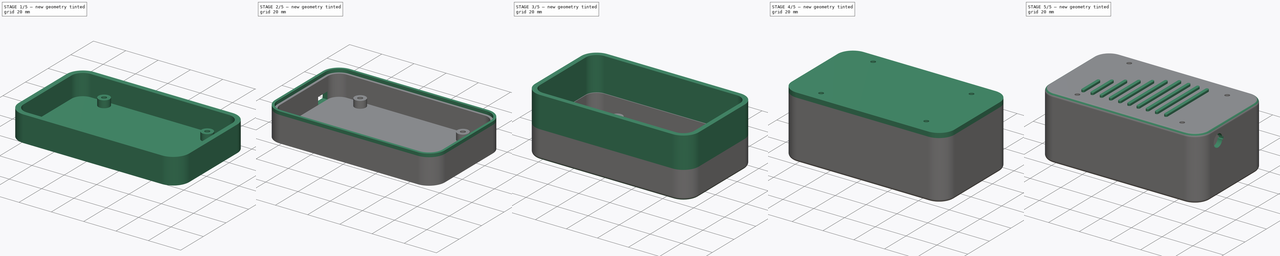
[diagram: build sequence overview — one tinted view per stage of 5, left to right]
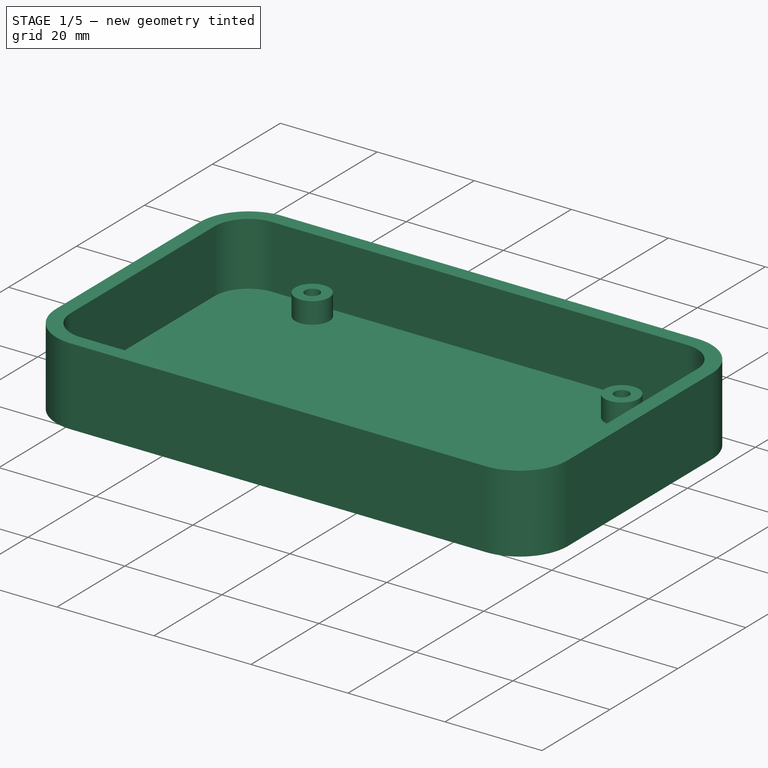
[diagram: stage 1 of 5 — iso view after this stage's code; geometry added in this stage tinted green]
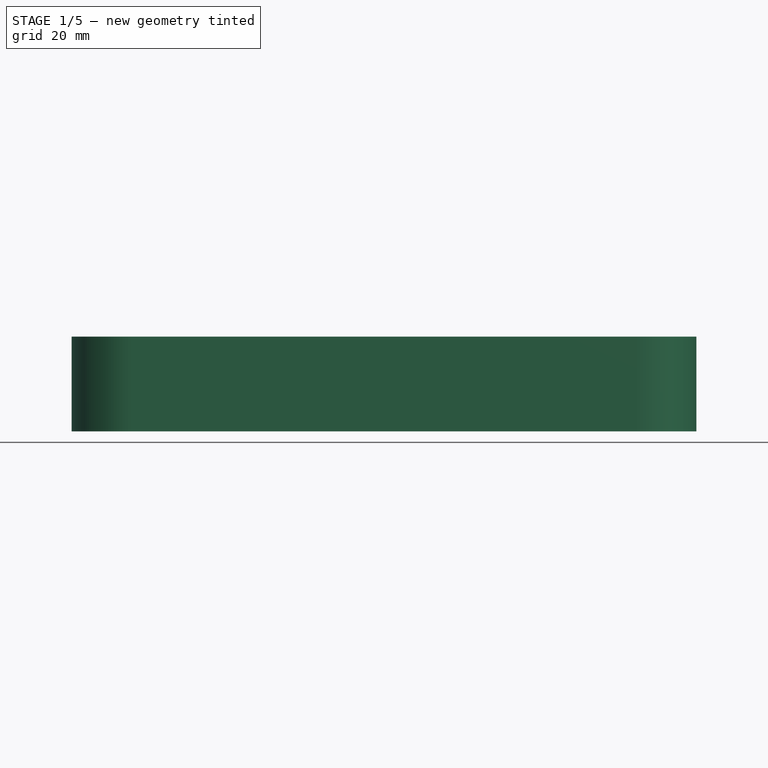
[diagram: stage 1 of 5 — front view after this stage's code; geometry added in this stage tinted green]
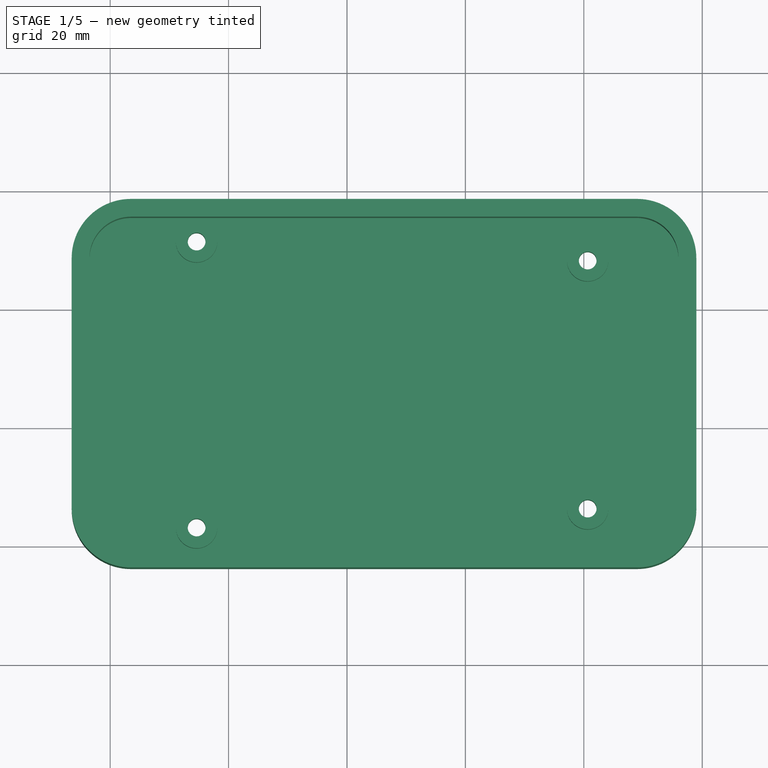
[diagram: stage 1 of 5 — top view after this stage's code; geometry added in this stage tinted green]
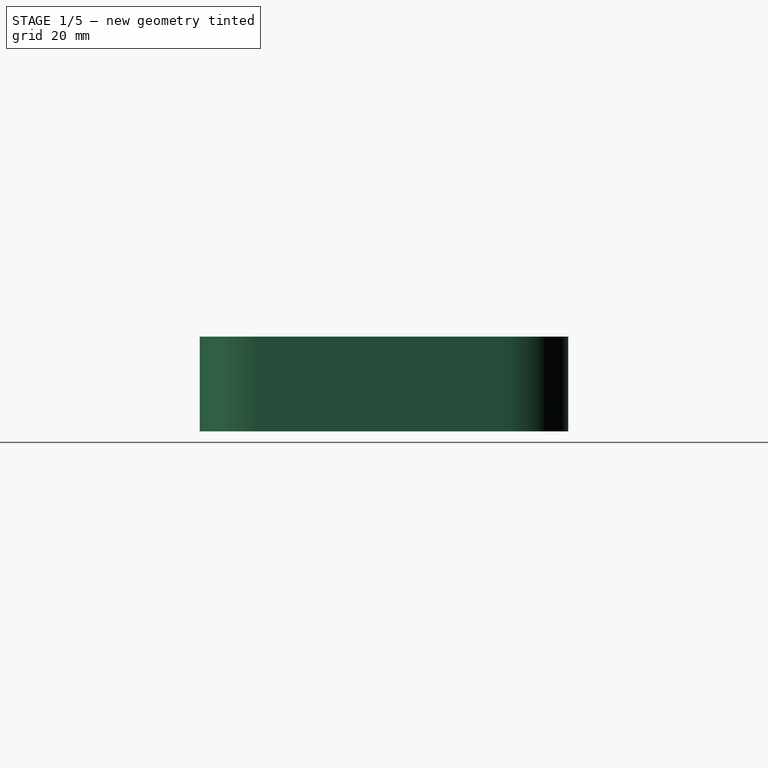
[diagram: stage 1 of 5 — right view after this stage's code; geometry added in this stage tinted green]
FCSTD DOCUMENT  (FreeCAD 0.14R2778 (Git))
Label: levelingglass_case_prototype_v2
License: CC-BY 3.0
LicenseURL: http://creativecommons.org/licenses/by/3.0/
objects: Sketcher::SketchObject×14, PartDesign::Pad×9, PartDesign::Pocket×5, Part::Feature×4, PartDesign::Fillet×4
note: 50 computed .brp shape members not serialized (recipe doc carries the construction recipe); baked Part::Feature solids carry a one-line shape summary decoded from their .brp

FEATURE [Part::Feature] BEAGLEBONE_BLACK
  shape: bbox 90.45 x 55.32 x 19.38 mm, 7354 faces, 0 solids (baked)
FEATURE [Sketcher::SketchObject] Sketch
  Placement = pos=(0,0,-6) rot=(0,0,1;0rad)
  sketch-geometry (16):
    g0: LineSegment StartX=3.5 StartY=55.5 StartZ=0 EndX=89 EndY=55.5 EndZ=0
    g1: LineSegment StartX=96 StartY=48.5 StartZ=0 EndX=96 EndY=6.25 EndZ=0
    g2: LineSegment StartX=89 StartY=-0.75 StartZ=0 EndX=3.5 EndY=-0.75 EndZ=0
    g3: LineSegment StartX=-3.5 StartY=6.25 StartZ=0 EndX=-3.5 EndY=48.5 EndZ=0
    g4: ArcOfCircle CenterX=3.5 CenterY=48.5 CenterZ=0 NormalX=0 NormalY=0 NormalZ=1 Radius=7 StartAngle=1.5708 EndAngle=3.14159
    g5: ArcOfCircle CenterX=89 CenterY=48.5 CenterZ=0 NormalX=0 NormalY=0 NormalZ=1 Radius=7 StartAngle=0 EndAngle=1.5708
    g6: ArcOfCircle CenterX=89 CenterY=6.25 CenterZ=0 NormalX=0 NormalY=0 NormalZ=1 Radius=7 StartAngle=4.71239 EndAngle=6.28319
    g7: ArcOfCircle CenterX=3.5 CenterY=6.25 CenterZ=0 NormalX=0 NormalY=0 NormalZ=1 Radius=7 StartAngle=3.14159 EndAngle=4.71239
    g8: LineSegment StartX=3.5 StartY=58.5 StartZ=0 EndX=89 EndY=58.5 EndZ=0
    g9: LineSegment StartX=99 StartY=48.5 StartZ=0 EndX=99 EndY=6.25 EndZ=0
    g10: LineSegment StartX=89 StartY=-3.75 StartZ=0 EndX=3.5 EndY=-3.75 EndZ=0
    g11: LineSegment StartX=-6.5 StartY=6.25 StartZ=0 EndX=-6.5 EndY=48.5 EndZ=0
    g12: ArcOfCircle CenterX=3.5 CenterY=48.5 CenterZ=0 NormalX=0 NormalY=0 NormalZ=1 Radius=10 StartAngle=1.5708 EndAngle=3.14159
    g13: ArcOfCircle CenterX=89 CenterY=48.5 CenterZ=0 NormalX=0 NormalY=0 NormalZ=1 Radius=10 StartAngle=0 EndAngle=1.5708
    g14: ArcOfCircle CenterX=89 CenterY=6.25 CenterZ=0 NormalX=0 NormalY=0 NormalZ=1 Radius=10 StartAngle=4.71239 EndAngle=6.28319
    g15: ArcOfCircle CenterX=3.5 CenterY=6.25 CenterZ=0 NormalX=0 NormalY=0 NormalZ=1 Radius=10 StartAngle=3.14159 EndAngle=4.71239
  constraints (40):
    c: Horizontal(g0)
    c: Horizontal(g2)
    c: Vertical(g1)
    c: Vertical(g3)
    c: Distance(g-1,g0) = 55.5
    c: Distance(g-1,g3) = 3.5
    c: Distance(g-1,g1) = 96
    c: Distance(g-1,g2) = 0.75
    c: Tangent(g0,g4)
    c: Tangent(g3,g4)
    c: Tangent(g0,g5)
    c: Tangent(g1,g5)
    c: Tangent(g1,g6)
    c: Tangent(g2,g6)
    c: Tangent(g2,g7)
    c: Tangent(g3,g7)
    c: Radius(g4) = 7
    c: Equal(g5,g4)
    c: Equal(g6,g4)
    c: Equal(g7,g4)
    c: Horizontal(g8)
    c: Horizontal(g10)
    c: Vertical(g9)
    c: Vertical(g11)
    c: Tangent(g8,g12)
    c: Tangent(g11,g12)
    c: Tangent(g8,g13)
    c: Tangent(g9,g13)
    c: Tangent(g9,g14)
    c: Tangent(g10,g14)
    c: Tangent(g10,g15)
    c: Tangent(g11,g15)
    c: Radius(g12) = 10
    c: Equal(g12,g13)
    c: Equal(g13,g14)
    c: Equal(g14,g15)
    c: DistanceX(g8,g0) = 0
    c: DistanceY(g1,g9) = 0
    c: DistanceX(g10,g2) = 0
    c: DistanceY(g3,g11) = 0
FEATURE [PartDesign::Pad] Pad
  Length = 13
  Length2 = 100
  Placement = pos=(0,0,-6) rot=(0,0,1;0rad)
  Sketch = -> Sketch
  Type = 0
FEATURE [Sketcher::SketchObject] Sketch001
  ExternalGeometry = -> [Pad]
  Placement = pos=(0,0,-6) rot=(1,0,0;3.14159rad)
  Support = -> Pad [Face17]
  sketch-geometry (8):
    g0: LineSegment StartX=3.5 StartY=3.75 StartZ=0 EndX=89 EndY=3.75 EndZ=0
    g1: LineSegment StartX=99 StartY=-6.25 StartZ=0 EndX=99 EndY=-48.5 EndZ=0
    g2: LineSegment StartX=89 StartY=-58.5 StartZ=0 EndX=3.5 EndY=-58.5 EndZ=0
    g3: LineSegment StartX=-6.5 StartY=-48.5 StartZ=0 EndX=-6.5 EndY=-6.25 EndZ=0
    g4: ArcOfCircle CenterX=3.5 CenterY=-6.25 CenterZ=0 NormalX=0 NormalY=0 NormalZ=1 Radius=10 StartAngle=1.5708 EndAngle=3.14159
    g5: ArcOfCircle CenterX=89 CenterY=-6.25 CenterZ=0 NormalX=0 NormalY=0 NormalZ=1 Radius=10 StartAngle=0 EndAngle=1.5708
    g6: ArcOfCircle CenterX=89 CenterY=-48.5 CenterZ=0 NormalX=0 NormalY=0 NormalZ=1 Radius=10 StartAngle=4.71239 EndAngle=6.28319
    g7: ArcOfCircle CenterX=3.5 CenterY=-48.5 CenterZ=0 NormalX=0 NormalY=0 NormalZ=1 Radius=10 StartAngle=3.14159 EndAngle=4.71239
  constraints (20):
    c: Horizontal(g0)
    c: Horizontal(g2)
    c: Vertical(g1)
    c: Vertical(g3)
    c: Tangent(g0,g4)
    c: Tangent(g3,g4)
    c: Tangent(g0,g5)
    c: Tangent(g1,g5)
    c: Tangent(g1,g6)
    c: Tangent(g2,g6)
    c: Tangent(g2,g7)
    c: Tangent(g3,g7)
    c: Equal(g7,g4)
    c: Equal(g4,g5)
    c: Equal(g6,g-7)
    c: Equal(g0,g2)
    c: Equal(g2,g-3)
    c: Equal(g3,g1)
    c: Equal(g1,g-6)
    c: Coincident(g3,g-9)
FEATURE [PartDesign::Pad] Pad001
  Length = 3
  Length2 = 100
  Placement = pos=(0,0,-6) rot=(0,0,1;0rad)
  Sketch = -> Sketch001
  Type = 0
FEATURE [Sketcher::SketchObject] Sketch002
  Placement = pos=(0,0,-6) rot=(0,0,1;0rad)
  Support = -> Pad001 [Face26]
  sketch-geometry (4):
    g0: Circle CenterX=14.6 CenterY=51.45 CenterZ=0 NormalX=0 NormalY=0 NormalZ=1 Radius=1.5
    g1: Circle CenterX=14.6 CenterY=3.15 CenterZ=0 NormalX=0 NormalY=0 NormalZ=1 Radius=1.5
    g2: Circle CenterX=80.65 CenterY=48.25 CenterZ=0 NormalX=0 NormalY=0 NormalZ=1 Radius=1.5
    g3: Circle CenterX=80.65 CenterY=6.35 CenterZ=0 NormalX=0 NormalY=0 NormalZ=1 Radius=1.5
  constraints (12):
    c: Radius(g0) = 1.5
    c: DistanceY(g-1,g0) = 51.45
    c: Equal(g3,g2)
    c: Equal(g2,g1)
    c: Equal(g1,g0)
    c: DistanceX(g-1,g1) = 14.6
    c: DistanceY(g-1,g1) = 3.15
    c: DistanceY(g-1,g3) = 6.35
    c: DistanceX(g-1,g2) = 80.65
    c: DistanceY(g-1,g2) = 48.25
    c: DistanceX(g1,g0) = 0
    c: DistanceX(g3,g2) = 0
FEATURE [PartDesign::Pocket] Pocket
  Length = 5
  Placement = pos=(0,0,-6) rot=(0,0,1;0rad)
  Sketch = -> Sketch002
  Type = 1
FEATURE [Sketcher::SketchObject] Sketch003
  ExternalGeometry = -> [Pocket]
  Placement = pos=(0,0,-6) rot=(0,0,1;0rad)
  Support = -> Pocket [Face26]
  sketch-geometry (8):
    g0: Circle CenterX=14.6 CenterY=3.15 CenterZ=0 NormalX=0 NormalY=0 NormalZ=1 Radius=1.5
    g1: Circle CenterX=14.6 CenterY=51.45 CenterZ=0 NormalX=0 NormalY=0 NormalZ=1 Radius=1.5
    g2: Circle CenterX=80.65 CenterY=48.25 CenterZ=0 NormalX=0 NormalY=0 NormalZ=1 Radius=1.5
    g3: Circle CenterX=80.65 CenterY=6.35 CenterZ=0 NormalX=0 NormalY=0 NormalZ=1 Radius=1.5
    g4: Circle CenterX=14.6 CenterY=3.15 CenterZ=0 NormalX=0 NormalY=0 NormalZ=1 Radius=3.5
    g5: Circle CenterX=14.6 CenterY=51.45 CenterZ=0 NormalX=0 NormalY=0 NormalZ=1 Radius=3.5
    g6: Circle CenterX=80.65 CenterY=6.35 CenterZ=0 NormalX=0 NormalY=0 NormalZ=1 Radius=3.5
    g7: Circle CenterX=80.65 CenterY=48.25 CenterZ=0 NormalX=0 NormalY=0 NormalZ=1 Radius=3.5
  constraints (16):
    c: Equal(g0,g-3)
    c: Equal(g1,g-5)
    c: Equal(g2,g-6)
    c: Equal(g3,g-4)
    c: Coincident(g0,g-3)
    c: Coincident(g1,g-5)
    c: Coincident(g3,g-6)
    c: Coincident(g2,g-4)
    c: Radius(g4) = 3.5
    c: Equal(g7,g6)
    c: Equal(g6,g5)
    c: Equal(g5,g4)
    c: Coincident(g4,g0)
    c: Coincident(g5,g1)
    c: Coincident(g6,g3)
    c: Coincident(g7,g2)
FEATURE [PartDesign::Pad] Pad002
  Length = 4.4
  Length2 = 100
  Placement = pos=(0,0,-6) rot=(0,0,1;0rad)
  Sketch = -> Sketch003
  Type = 0
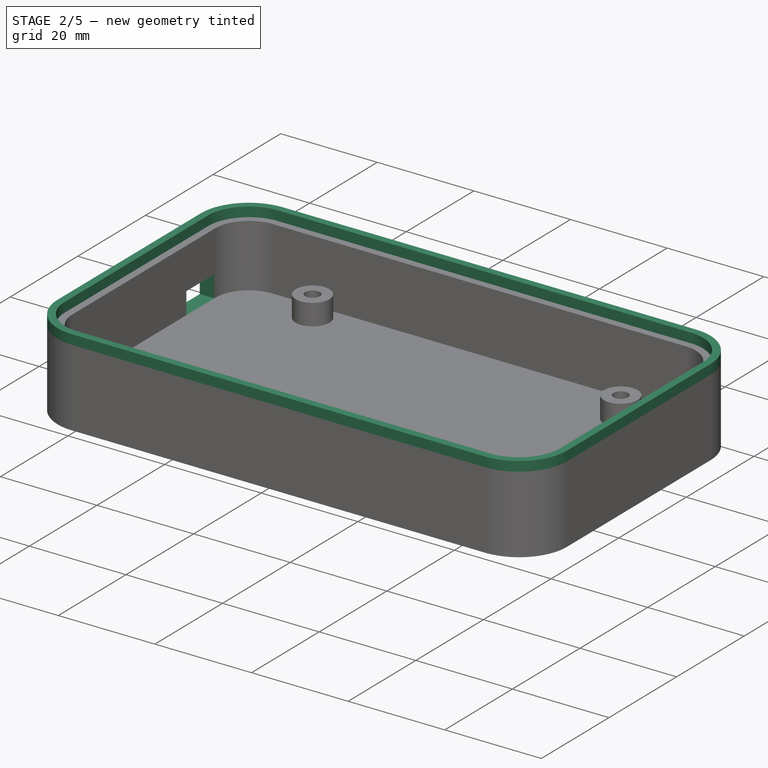
[diagram: stage 2 of 5 — iso view after this stage's code; geometry added in this stage tinted green]
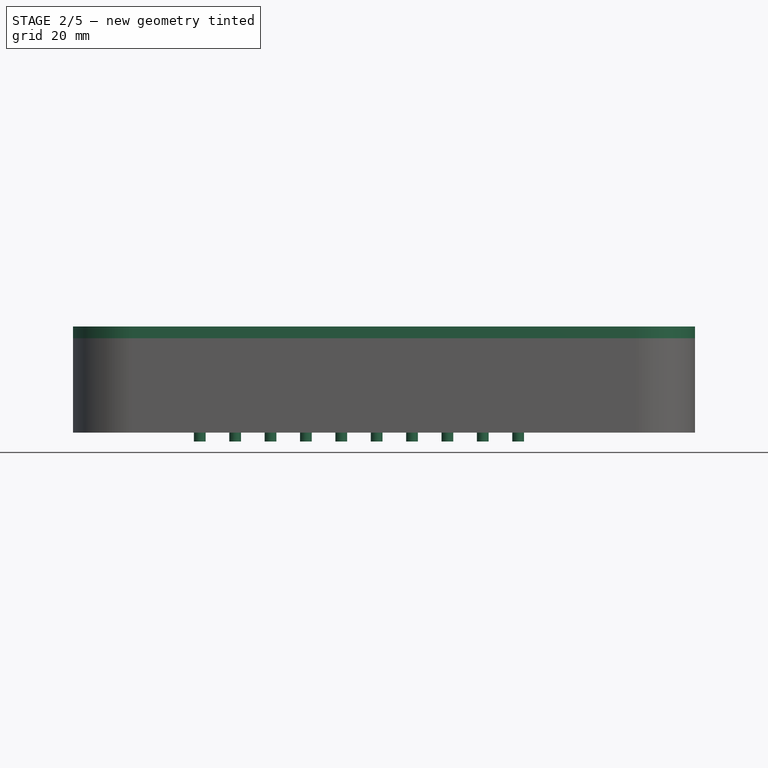
[diagram: stage 2 of 5 — front view after this stage's code; geometry added in this stage tinted green]
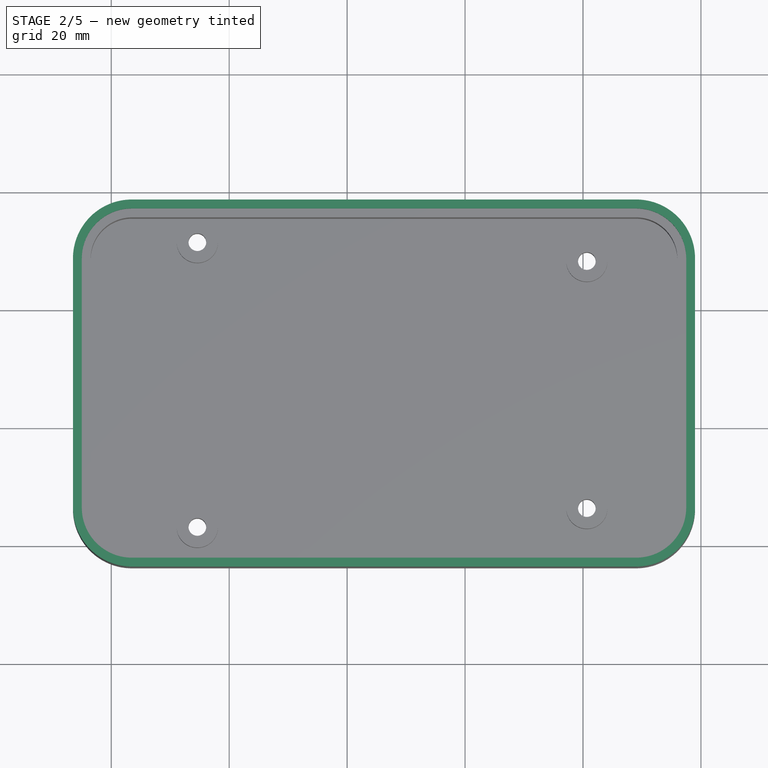
[diagram: stage 2 of 5 — top view after this stage's code; geometry added in this stage tinted green]
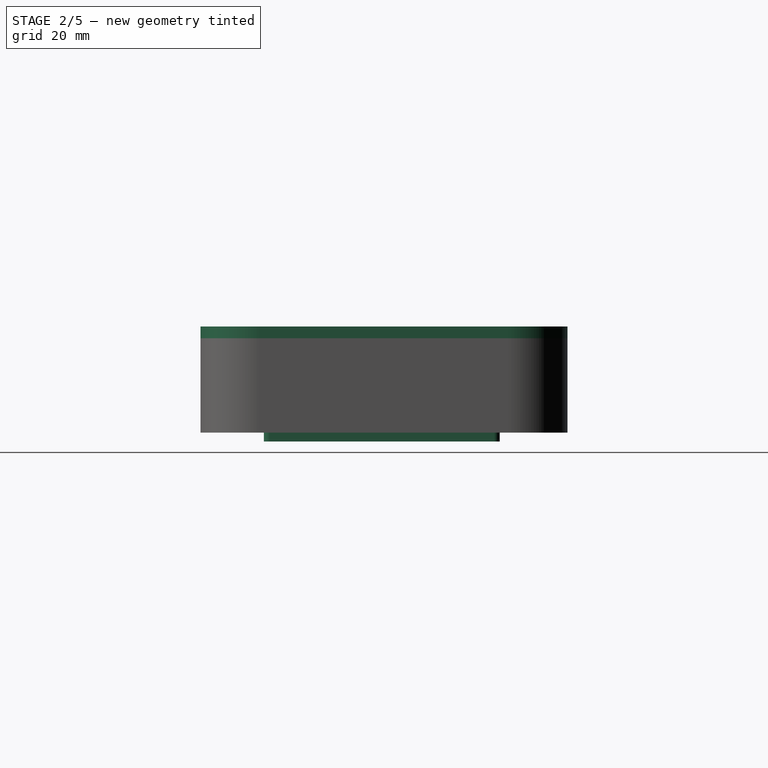
[diagram: stage 2 of 5 — right view after this stage's code; geometry added in this stage tinted green]
FEATURE [Sketcher::SketchObject] Sketch004
  ExternalGeometry = -> [Pad002]
  Placement = pos=(0,0,7) rot=(0,0,1;0rad)
  Support = -> Pad002 [Face1]
  sketch-geometry (16):
    g0: LineSegment StartX=3.5 StartY=58.5 StartZ=0 EndX=89 EndY=58.5 EndZ=0
    g1: LineSegment StartX=99 StartY=48.5 StartZ=0 EndX=99 EndY=6.25 EndZ=0
    g2: LineSegment StartX=89 StartY=-3.75 StartZ=0 EndX=3.5 EndY=-3.75 EndZ=0
    g3: LineSegment StartX=-6.5 StartY=6.25 StartZ=0 EndX=-6.5 EndY=48.5 EndZ=0
    g4: ArcOfCircle CenterX=3.5 CenterY=48.5 CenterZ=0 NormalX=0 NormalY=0 NormalZ=1 Radius=10 StartAngle=1.5708 EndAngle=3.14159
    g5: ArcOfCircle CenterX=89 CenterY=48.5 CenterZ=0 NormalX=0 NormalY=0 NormalZ=1 Radius=10 StartAngle=0 EndAngle=1.5708
    g6: ArcOfCircle CenterX=89 CenterY=6.25 CenterZ=0 NormalX=0 NormalY=0 NormalZ=1 Radius=10 StartAngle=4.71239 EndAngle=6.28319
    g7: ArcOfCircle CenterX=3.5 CenterY=6.25 CenterZ=0 NormalX=0 NormalY=0 NormalZ=1 Radius=10 StartAngle=3.14159 EndAngle=4.71239
    g8: LineSegment StartX=3.5 StartY=57 StartZ=0 EndX=89 EndY=57 EndZ=0
    g9: LineSegment StartX=97.5 StartY=48.5 StartZ=0 EndX=97.5 EndY=6.25 EndZ=0
    g10: LineSegment StartX=89 StartY=-2.25 StartZ=0 EndX=3.5 EndY=-2.25 EndZ=0
    g11: LineSegment StartX=-5 StartY=6.25 StartZ=0 EndX=-5 EndY=48.5 EndZ=0
    g12: ArcOfCircle CenterX=3.5 CenterY=48.5 CenterZ=0 NormalX=0 NormalY=0 NormalZ=1 Radius=8.5 StartAngle=1.5708 EndAngle=3.14159
    g13: ArcOfCircle CenterX=89 CenterY=48.5 CenterZ=0 NormalX=0 NormalY=0 NormalZ=1 Radius=8.5 StartAngle=0 EndAngle=1.5708
    g14: ArcOfCircle CenterX=3.5 CenterY=6.25 CenterZ=0 NormalX=0 NormalY=0 NormalZ=1 Radius=8.5 StartAngle=3.14159 EndAngle=4.71239
    g15: ArcOfCircle CenterX=89 CenterY=6.25 CenterZ=0 NormalX=0 NormalY=0 NormalZ=1 Radius=8.5 StartAngle=4.71239 EndAngle=6.28319
  constraints (39):
    c: Horizontal(g0)
    c: Horizontal(g2)
    c: Vertical(g1)
    c: Vertical(g3)
    c: Tangent(g0,g4)
    c: Tangent(g3,g4)
    c: Tangent(g0,g5)
    c: Tangent(g1,g5)
    c: Tangent(g1,g6)
    c: Tangent(g2,g6)
    c: Tangent(g2,g7)
    c: Tangent(g3,g7)
    c: Equal(g4,g5)
    c: Equal(g5,g7)
    c: Equal(g7,g6)
    c: Equal(g6,g-4)
    c: Equal(g3,g-3)
    c: Equal(g2,g-5)
    c: Coincident(g0,g-5)
    c: Horizontal(g8)
    c: Horizontal(g10)
    c: Vertical(g9)
    c: Vertical(g11)
    c: Tangent(g8,g12)
    c: Tangent(g11,g12)
    c: Tangent(g8,g13)
    c: Tangent(g9,g13)
    c: Tangent(g10,g14)
    c: Tangent(g11,g14)
    c: Tangent(g9,g15)
    c: Tangent(g10,g15)
    c: Radius(g12) = 8.5
    c: Equal(g12,g13)
    c: Equal(g13,g14)
    c: Equal(g14,g15)
    c: DistanceX(g8,g0) = 0
    c: DistanceY(g11,g3) = 0
    c: DistanceY(g9,g1) = 0
    c: DistanceX(g10,g2) = 0
FEATURE [PartDesign::Pad] Pad003
  Length = 2
  Length2 = 100
  Placement = pos=(0,0,-6) rot=(0,0,1;0rad)
  Sketch = -> Sketch004
  Type = 0
FEATURE [Sketcher::SketchObject] Sketch010
  Placement = pos=(0,0,32) rot=(0,0,1;0rad)
  Support = -> Pad006 [Face35]
  sketch-geometry (4):
    g0: Circle CenterX=14.6 CenterY=3.15 CenterZ=0 NormalX=0 NormalY=0 NormalZ=1 Radius=1.5
    g1: Circle CenterX=14.6 CenterY=51.4 CenterZ=0 NormalX=0 NormalY=0 NormalZ=1 Radius=1.5
    g2: Circle CenterX=80.65 CenterY=48.25 CenterZ=0 NormalX=0 NormalY=0 NormalZ=1 Radius=1.5
    g3: Circle CenterX=80.65 CenterY=6.35 CenterZ=0 NormalX=0 NormalY=0 NormalZ=1 Radius=1.5
  constraints (12):
    c: Radius(g0) = 1.5
    c: Equal(g3,g2)
    c: Equal(g2,g1)
    c: Equal(g1,g0)
    c: DistanceY(g-1,g0) = 3.15
    c: DistanceX(g-1,g0) = 14.6
    c: DistanceX(g1,g0) = 0
    c: DistanceY(g0,g1) = 48.25
    c: DistanceX(g0,g3) = 66.05
    c: DistanceX(g3,g2) = 0
    c: DistanceY(g0,g3) = 3.2
    c: DistanceY(g2,g3) = -41.9
FEATURE [Part::Feature] CAPE001  label="Power Cape"
  Placement = pos=(0,0,17.5) rot=(0,0,1;0rad)
  shape: bbox 86.45 x 54.73 x 27.56 mm, 1950 faces, 0 solids (baked)
FEATURE [Part::Feature] CAPE  label="Audio Cape"
  Placement = pos=(0,0,9) rot=(0,0,1;0rad)
  shape: bbox 89.42 x 54.73 x 8.509 mm, 1991 faces, 0 solids (baked)
FEATURE [Sketcher::SketchObject] Sketch014
  Placement = pos=(-6.5,0,-6) rot=(0.57735,-0.57735,-0.57735;2.0944rad)
  Support = -> Pad003 [Face8]
  sketch-geometry (4):
    g0: LineSegment StartX=-48.25 StartY=4.5 StartZ=0 EndX=-40 EndY=4.5 EndZ=0
    g1: LineSegment StartX=-40 StartY=4.5 StartZ=0 EndX=-40 EndY=0 EndZ=0
    g2: LineSegment StartX=-40 StartY=0 StartZ=0 EndX=-48.25 EndY=0 EndZ=0
    g3: LineSegment StartX=-48.25 StartY=0 StartZ=0 EndX=-48.25 EndY=4.5 EndZ=0
  constraints (12):
    c: Coincident(g0,g1)
    c: Coincident(g1,g2)
    c: Coincident(g2,g3)
    c: Coincident(g3,g0)
    c: Horizontal(g0)
    c: Horizontal(g2)
    c: Vertical(g1)
    c: Vertical(g3)
    c: Distance(g0) = 8.25
    c: Distance(g1) = 4.5
    c: PointOnObject(g1,g-1)
    c: Distance(g-1,g1) = 40
FEATURE [PartDesign::Pocket] Pocket006
  Length = 5
  Placement = pos=(0,0,-6) rot=(0,0,1;0rad)
  Sketch = -> Sketch014
  Type = 2
FEATURE [Sketcher::SketchObject] Sketch015002
  Placement = pos=(0,0,-9) rot=(1,0,0;3.14159rad)
  Support = -> Pocket006 [Face4]
  sketch-geometry (61):
    g0: LineSegment [constr] StartX=14 StartY=-8 StartZ=0 EndX=16 EndY=-8 EndZ=0
    g1: LineSegment StartX=16 StartY=-8 StartZ=0 EndX=16 EndY=-22 EndZ=0
    g2: LineSegment [constr] StartX=16 StartY=-22 StartZ=0 EndX=14 EndY=-22 EndZ=0
    g3: LineSegment StartX=14 StartY=-22 StartZ=0 EndX=14 EndY=-8 EndZ=0
    g4: ArcOfCircle CenterX=15 CenterY=-8 CenterZ=0 NormalX=0 NormalY=0 NormalZ=1 Radius=1 StartAngle=6.28319 EndAngle=9.42478
    g5: ArcOfCircle CenterX=15 CenterY=-22 CenterZ=0 NormalX=0 NormalY=0 NormalZ=1 Radius=1 StartAngle=3.14159 EndAngle=6.28319
    g6: LineSegment [constr] StartX=0 StartY=-7 StartZ=0 EndX=15 EndY=-7 EndZ=0
    g7: LineSegment [constr] StartX=20 StartY=-8 StartZ=0 EndX=22 EndY=-8 EndZ=0
    g8: LineSegment StartX=22 StartY=-8 StartZ=0 EndX=22 EndY=-26 EndZ=0
    g9: LineSegment [constr] StartX=22 StartY=-26 StartZ=0 EndX=20 EndY=-26 EndZ=0
    g10: LineSegment StartX=20 StartY=-26 StartZ=0 EndX=20 EndY=-8 EndZ=0
    g11: ArcOfCircle CenterX=21 CenterY=-8 CenterZ=0 NormalX=0 NormalY=0 NormalZ=1 Radius=1 StartAngle=6.28319 EndAngle=9.42478
    g12: ArcOfCircle CenterX=21 CenterY=-26 CenterZ=0 NormalX=0 NormalY=0 NormalZ=1 Radius=1 StartAngle=3.14159 EndAngle=6.28319
    g13: LineSegment [constr] StartX=26 StartY=-8 StartZ=0 EndX=28 EndY=-8 EndZ=0
    g14: LineSegment StartX=28 StartY=-8 StartZ=0 EndX=28 EndY=-30 EndZ=0
    g15: LineSegment [constr] StartX=28 StartY=-30 StartZ=0 EndX=26 EndY=-30 EndZ=0
    g16: LineSegment StartX=26 StartY=-30 StartZ=0 EndX=26 EndY=-8 EndZ=0
    g17: ArcOfCircle CenterX=27 CenterY=-8 CenterZ=0 NormalX=0 NormalY=0 NormalZ=1 Radius=1 StartAngle=1.963e-09 EndAngle=3.14159
    g18: ArcOfCircle CenterX=27 CenterY=-30 CenterZ=0 NormalX=0 NormalY=0 NormalZ=1 Radius=1 StartAngle=3.14159 EndAngle=6.28319
    g19: LineSegment [constr] StartX=32 StartY=-8 StartZ=0 EndX=34 EndY=-8 EndZ=0
    g20: LineSegment StartX=34 StartY=-8 StartZ=0 EndX=34 EndY=-34 EndZ=0
    g21: LineSegment [constr] StartX=34 StartY=-34 StartZ=0 EndX=32 EndY=-34 EndZ=0
    g22: LineSegment StartX=32 StartY=-34 StartZ=0 EndX=32 EndY=-8 EndZ=0
    g23: ArcOfCircle CenterX=33 CenterY=-8 CenterZ=0 NormalX=0 NormalY=0 NormalZ=1 Radius=1 StartAngle=6.28319 EndAngle=9.42478
    g24: ArcOfCircle CenterX=33 CenterY=-34 CenterZ=0 NormalX=0 NormalY=0 NormalZ=1 Radius=1 StartAngle=3.14159 EndAngle=6.28319
    g25: LineSegment [constr] StartX=38 StartY=-8 StartZ=0 EndX=40 EndY=-8 EndZ=0
    g26: LineSegment StartX=40 StartY=-8 StartZ=0 EndX=40 EndY=-38 EndZ=0
    g27: LineSegment [constr] StartX=40 StartY=-38 StartZ=0 EndX=38 EndY=-38 EndZ=0
    g28: LineSegment StartX=38 StartY=-38 StartZ=0 EndX=38 EndY=-8 EndZ=0
    g29: ArcOfCircle CenterX=39 CenterY=-38 CenterZ=0 NormalX=0 NormalY=0 NormalZ=1 Radius=1 StartAngle=3.14159 EndAngle=6.28319
    g30: ArcOfCircle CenterX=39 CenterY=-7.99999 CenterZ=0 NormalX=0 NormalY=0 NormalZ=1 Radius=1 StartAngle=6.28318 EndAngle=9.42478
    g31: LineSegment [constr] StartX=44 StartY=-8 StartZ=0 EndX=46 EndY=-8 EndZ=0
    g32: LineSegment StartX=46 StartY=-8 StartZ=0 EndX=46 EndY=-42 EndZ=0
    g33: LineSegment [constr] StartX=46 StartY=-42 StartZ=0 EndX=44 EndY=-42 EndZ=0
    g34: LineSegment StartX=44 StartY=-42 StartZ=0 EndX=44 EndY=-8 EndZ=0
    g35: LineSegment [constr] StartX=50 StartY=-8 StartZ=0 EndX=52 EndY=-8 EndZ=0
    g36: LineSegment StartX=52 StartY=-8 StartZ=0 EndX=52 EndY=-46 EndZ=0
    g37: LineSegment [constr] StartX=52 StartY=-46 StartZ=0 EndX=50 EndY=-46 EndZ=0
    g38: LineSegment StartX=50 StartY=-46 StartZ=0 EndX=50 EndY=-8 EndZ=0
    g39: ArcOfCircle CenterX=45 CenterY=-7.99999 CenterZ=0 NormalX=0 NormalY=0 NormalZ=1 Radius=1 StartAngle=6.28318 EndAngle=9.42478
    g40: ArcOfCircle CenterX=51 CenterY=-7.99999 CenterZ=0 NormalX=0 NormalY=0 NormalZ=1 Radius=1 StartAngle=6.28318 EndAngle=9.42478
    g41: ArcOfCircle CenterX=45 CenterY=-42 CenterZ=0 NormalX=0 NormalY=0 NormalZ=1 Radius=1 StartAngle=3.1416 EndAngle=6.28318
    g42: ArcOfCircle CenterX=51 CenterY=-46 CenterZ=0 NormalX=0 NormalY=0 NormalZ=1 Radius=1 StartAngle=3.1416 EndAngle=6.28318
    g43: LineSegment [constr] StartX=56 StartY=-8 StartZ=0 EndX=58 EndY=-8 EndZ=0
    g44: LineSegment StartX=58 StartY=-8 StartZ=0 EndX=58 EndY=-46 EndZ=0
    g45: LineSegment [constr] StartX=58 StartY=-46 StartZ=0 EndX=56 EndY=-46 EndZ=0
    g46: LineSegment StartX=56 StartY=-46 StartZ=0 EndX=56 EndY=-8 EndZ=0
    g47: LineSegment [constr] StartX=62 StartY=-8 StartZ=0 EndX=64 EndY=-8 EndZ=0
    g48: LineSegment StartX=64 StartY=-8 StartZ=0 EndX=64 EndY=-46 EndZ=0
    g49: LineSegment [constr] StartX=64 StartY=-46 StartZ=0 EndX=62 EndY=-46 EndZ=0
    g50: LineSegment StartX=62 StartY=-46 StartZ=0 EndX=62 EndY=-8 EndZ=0
    g51: LineSegment [constr] StartX=68 StartY=-8 StartZ=0 EndX=70 EndY=-8 EndZ=0
    g52: LineSegment StartX=70 StartY=-8 StartZ=0 EndX=70 EndY=-46 EndZ=0
    g53: LineSegment [constr] StartX=70 StartY=-46 StartZ=0 EndX=68 EndY=-46 EndZ=0
    g54: LineSegment StartX=68 StartY=-46 StartZ=0 EndX=68 EndY=-8 EndZ=0
    g55: ArcOfCircle CenterX=57 CenterY=-46 CenterZ=0 NormalX=0 NormalY=0 NormalZ=1 Radius=1 StartAngle=3.1416 EndAngle=6.28318
    g56: ArcOfCircle CenterX=63 CenterY=-46 CenterZ=0 NormalX=0 NormalY=0 NormalZ=1 Radius=1 StartAngle=3.1416 EndAngle=6.28318
    g57: ArcOfCircle CenterX=69 CenterY=-46 CenterZ=0 NormalX=0 NormalY=0 NormalZ=1 Radius=1 StartAngle=3.1416 EndAngle=6.28318
    g58: ArcOfCircle CenterX=57 CenterY=-7.99999 CenterZ=0 NormalX=0 NormalY=0 NormalZ=1 Radius=1 StartAngle=6.28318 EndAngle=9.42478
    g59: ArcOfCircle CenterX=63 CenterY=-7.99999 CenterZ=0 NormalX=0 NormalY=0 NormalZ=1 Radius=1 StartAngle=6.28318 EndAngle=9.42478
    g60: ArcOfCircle CenterX=69 CenterY=-7.99999 CenterZ=0 NormalX=0 NormalY=0 NormalZ=1 Radius=1 StartAngle=6.28318 EndAngle=9.42478
  constraints (184):
    c: Coincident(g0,g1)
    c: Coincident(g1,g2)
    c: Coincident(g2,g3)
    c: Coincident(g3,g0)
    c: Horizontal(g0)
    c: Horizontal(g2)
    c: Vertical(g1)
    c: Vertical(g3)
    c: Radius(g4) = 1
    c: Coincident(g4,g0)
    c: Coincident(g4,g0)
    c: Coincident(g5,g1)
    c: Coincident(g5,g2)
    c: Distance(g3) = 14
    c: Parallel(g-1,g6)
    c: PointOnObject(g6,g-2)
    c: Distance(g6) = 15
    c: Distance(g2) = 2
    c: Coincident(g7,g8)
    c: Coincident(g8,g9)
    c: Coincident(g9,g10)
    c: Coincident(g10,g7)
    c: Horizontal(g7)
    c: Horizontal(g9)
    c: Vertical(g8)
    c: Vertical(g10)
    c: Equal(g9,g2)
    c: Distance(g8) = 18
    c: DistanceX(g1,g9) = 4
    c: Equal(g11,g4)
    c: Coincident(g11,g7)
    c: Coincident(g11,g7)
    c: Equal(g12,g11)
    c: Coincident(g12,g8)
    c: Coincident(g12,g9)
    c: Coincident(g13,g14)
    c: Coincident(g14,g15)
    c: Coincident(g15,g16)
    c: Coincident(g16,g13)
    c: Horizontal(g13)
    c: Horizontal(g15)
    c: Vertical(g14)
    c: Vertical(g16)
    c: Equal(g9,g15)
    c: Distance(g14) = 22
    c: Equal(g18,g17)
    c: Equal(g17,g4)
    c: Coincident(g17,g13)
    c: Coincident(g17,g13)
    c: Coincident(g18,g15)
    c: Coincident(g18,g14)
    c: Coincident(g19,g20)
    c: Coincident(g20,g21)
    c: Coincident(g21,g22)
    c: Coincident(g22,g19)
    c: Horizontal(g19)
    c: Horizontal(g21)
    c: Vertical(g20)
    c: Vertical(g22)
    c: Equal(g15,g21)
    c: Equal(g24,g23)
    c: Equal(g23,g4)
    c: Coincident(g23,g19)
    c: Coincident(g23,g19)
    c: Coincident(g24,g20)
    c: Coincident(g24,g21)
    c: Distance(g20) = 26
    c: Coincident(g25,g26)
    c: Coincident(g26,g27)
    c: Coincident(g27,g28)
    c: Coincident(g28,g25)
    c: Horizontal(g25)
    c: Horizontal(g27)
    c: Vertical(g26)
    c: Vertical(g28)
    c: Distance(g26) = 30
    c: Equal(g29,g30)
    c: Equal(g30,g4)
    c: Coincident(g30,g25)
    c: Coincident(g30,g25)
    c: Coincident(g29,g27)
    c: Coincident(g29,g26)
    c: Coincident(g31,g32)
    c: Coincident(g32,g33)
    c: Coincident(g33,g34)
    c: Coincident(g34,g31)
    c: Horizontal(g31)
    c: Horizontal(g33)
    c: Vertical(g32)
    c: Vertical(g34)
    c: Coincident(g35,g36)
    c: Coincident(g36,g37)
    c: Coincident(g37,g38)
    c: Coincident(g38,g35)
    c: Horizontal(g35)
    c: Horizontal(g37)
    c: Vertical(g36)
    c: Vertical(g38)
    c: Equal(g33,g37)
    c: Equal(g37,g27)
    c: Distance(g32) = 34
    c: Distance(g36) = 38
    c: Equal(g41,g42)
    c: Equal(g42,g39)
    c: Equal(g39,g40)
    c: Equal(g40,g4)
    c: Coincident(g39,g31)
    c: Coincident(g39,g31)
    c: Coincident(g40,g35)
    c: Coincident(g40,g35)
    c: Coincident(g41,g32)
    c: Coincident(g33,g41)
    c: Coincident(g42,g36)
    c: Coincident(g42,g37)
    c: Coincident(g43,g44)
    c: Coincident(g44,g45)
    c: Coincident(g45,g46)
    c: Coincident(g46,g43)
    c: Horizontal(g43)
    c: Horizontal(g45)
    c: Vertical(g44)
    c: Vertical(g46)
    c: Coincident(g47,g48)
    c: Coincident(g48,g49)
    c: Coincident(g49,g50)
    c: Coincident(g50,g47)
    c: Horizontal(g47)
    c: Horizontal(g49)
    c: Vertical(g48)
    c: Vertical(g50)
    c: Coincident(g51,g52)
    c: Coincident(g52,g53)
    c: Coincident(g53,g54)
    c: Coincident(g54,g51)
    c: Horizontal(g51)
    c: Horizontal(g53)
    c: Vertical(g52)
    c: Vertical(g54)
    c: Equal(g53,g49)
    c: Equal(g49,g45)
    c: Equal(g45,g37)
    c: Equal(g44,g48)
    c: Equal(g48,g52)
    c: Equal(g52,g36)
    c: Equal(g58,g59)
    c: Equal(g59,g60)
    c: Equal(g60,g56)
    c: Equal(g56,g57)
    c: Equal(g57,g55)
    c: Equal(g55,g4)
    c: Coincident(g55,g45)
    c: Coincident(g55,g44)
    c: Coincident(g56,g49)
    c: Coincident(g56,g48)
    c: Coincident(g57,g53)
    c: Coincident(g57,g52)
    c: Coincident(g58,g43)
    c: Coincident(g58,g43)
    c: Coincident(g59,g47)
    c: Coincident(g59,g47)
    c: Coincident(g60,g51)
    c: Coincident(g60,g51)
    c: Distance(g-1,g6) = 7
    c: DistanceX(g4,g6) = 0
    c: Equal(g5,g4)
    c: DistanceY(g0,g7) = 0
    c: PointOnObject(g6,g4)
    c: DistanceY(g7,g13) = 0
    c: DistanceX(g8,g15) = 4
    c: DistanceY(g13,g19) = 0
    c: DistanceX(g14,g21) = 4
    c: DistanceY(g47,g51) = 0
    c: DistanceX(g48,g53) = 4
    c: DistanceY(g43,g47) = 0
    c: DistanceX(g44,g49) = 4
    c: DistanceY(g35,g43) = 0
    c: DistanceX(g36,g45) = 4
    c: DistanceY(g31,g35) = 0
    c: DistanceX(g32,g37) = 4
    c: DistanceY(g25,g31) = 0
    c: DistanceX(g26,g33) = 4
    c: DistanceY(g19,g25) = 0
    c: DistanceX(g20,g27) = 4
    c: PointOnObject(g29,g27)
FEATURE [PartDesign::Pad] Pad010
  Length = 1.5
  Length2 = 100
  Placement = pos=(0,0,-6) rot=(0,0,1;0rad)
  Sketch = -> Sketch015002
  Type = 0
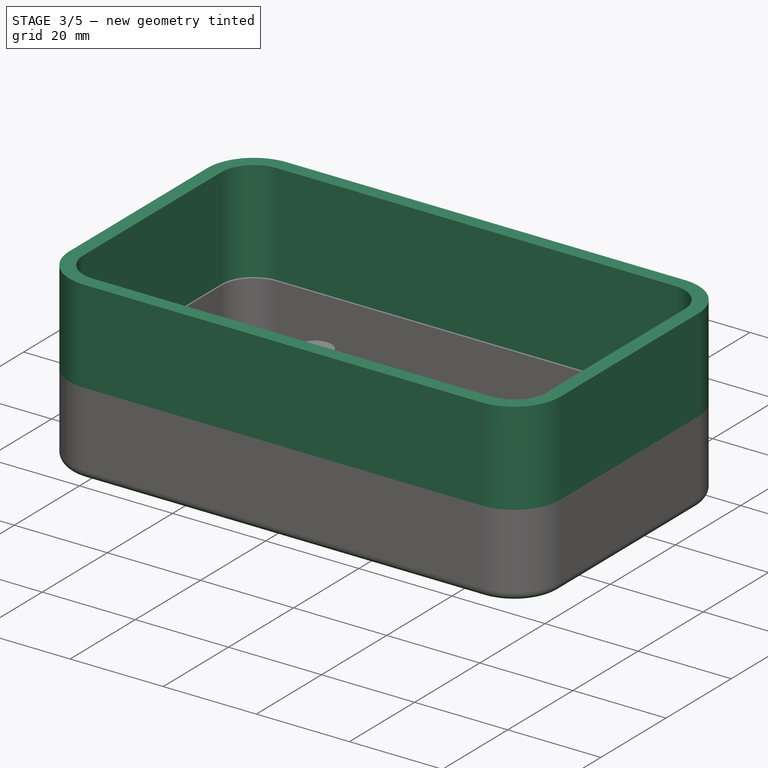
[diagram: stage 3 of 5 — iso view after this stage's code; geometry added in this stage tinted green]
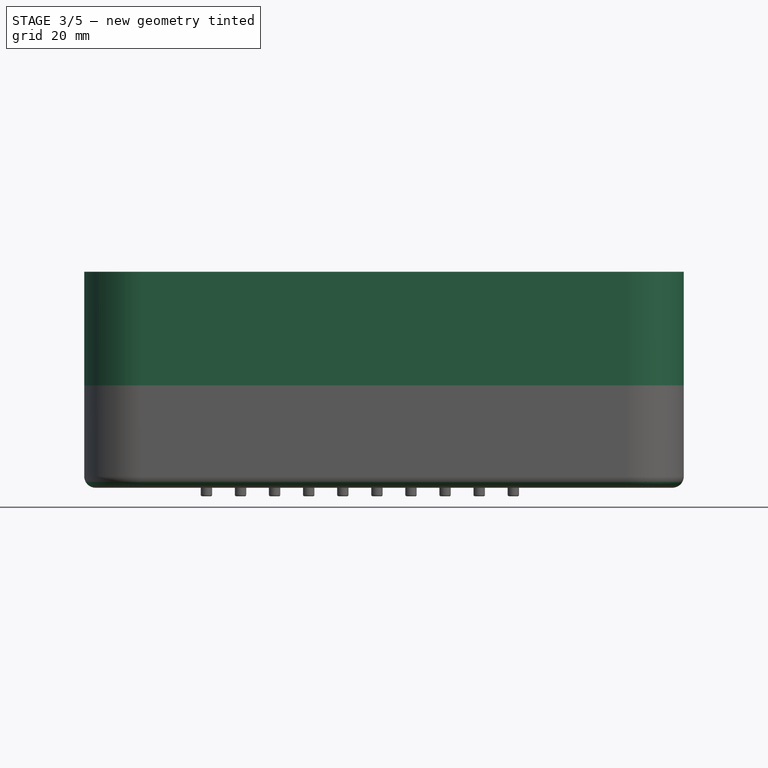
[diagram: stage 3 of 5 — front view after this stage's code; geometry added in this stage tinted green]
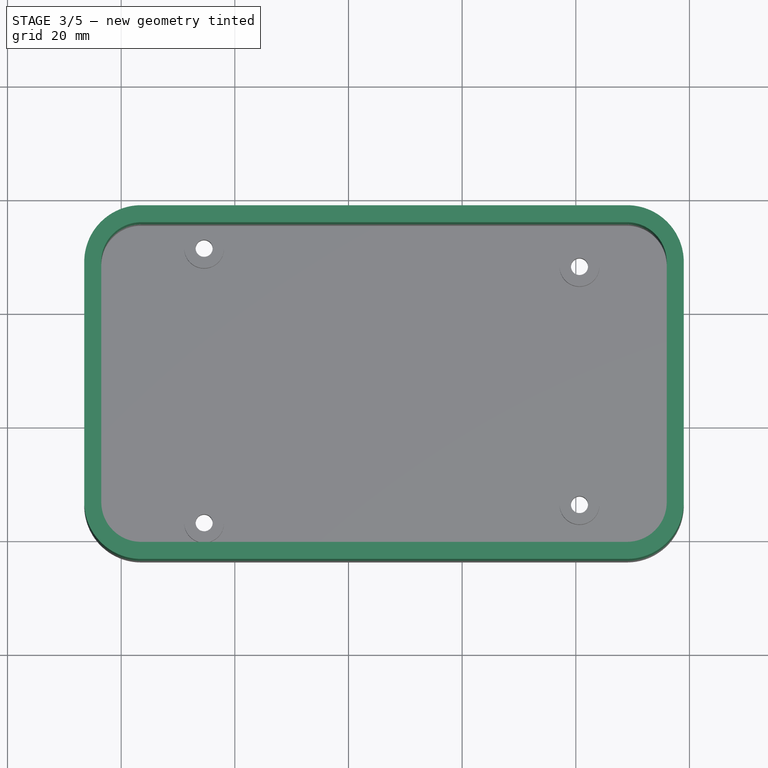
[diagram: stage 3 of 5 — top view after this stage's code; geometry added in this stage tinted green]
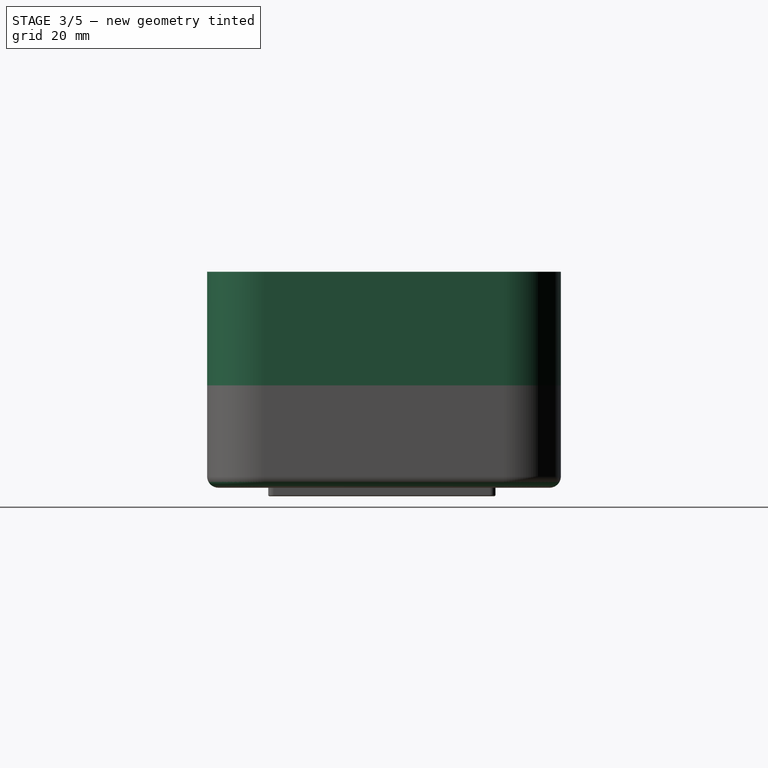
[diagram: stage 3 of 5 — right view after this stage's code; geometry added in this stage tinted green]
FEATURE [Sketcher::SketchObject] Sketch007
  Placement = pos=(0,0,9) rot=(0,0,1;0rad)
  sketch-geometry (16):
    g0: LineSegment StartX=3.5 StartY=55.5 StartZ=0 EndX=89 EndY=55.5 EndZ=0
    g1: LineSegment StartX=96 StartY=48.5 StartZ=0 EndX=96 EndY=6.25 EndZ=0
    g2: LineSegment StartX=89 StartY=-0.75 StartZ=0 EndX=3.5 EndY=-0.75 EndZ=0
    g3: LineSegment StartX=-3.5 StartY=6.25 StartZ=0 EndX=-3.5 EndY=48.5 EndZ=0
    g4: ArcOfCircle CenterX=3.5 CenterY=48.5 CenterZ=0 NormalX=0 NormalY=0 NormalZ=1 Radius=7 StartAngle=1.5708 EndAngle=3.14159
    g5: ArcOfCircle CenterX=89 CenterY=48.5 CenterZ=0 NormalX=0 NormalY=0 NormalZ=1 Radius=7 StartAngle=0 EndAngle=1.5708
    g6: ArcOfCircle CenterX=89 CenterY=6.25 CenterZ=0 NormalX=0 NormalY=0 NormalZ=1 Radius=7 StartAngle=4.71239 EndAngle=6.28319
    g7: ArcOfCircle CenterX=3.5 CenterY=6.25 CenterZ=0 NormalX=0 NormalY=0 NormalZ=1 Radius=7 StartAngle=3.14159 EndAngle=4.71239
    g8: LineSegment StartX=3.5 StartY=58.5 StartZ=0 EndX=89 EndY=58.5 EndZ=0
    g9: LineSegment StartX=99 StartY=48.5 StartZ=0 EndX=99 EndY=6.25 EndZ=0
    g10: LineSegment StartX=89 StartY=-3.75 StartZ=0 EndX=3.5 EndY=-3.75 EndZ=0
    g11: LineSegment StartX=-6.5 StartY=6.25 StartZ=0 EndX=-6.5 EndY=48.5 EndZ=0
    g12: ArcOfCircle CenterX=3.5 CenterY=48.5 CenterZ=0 NormalX=0 NormalY=0 NormalZ=1 Radius=10 StartAngle=1.5708 EndAngle=3.14159
    g13: ArcOfCircle CenterX=89 CenterY=48.5 CenterZ=0 NormalX=0 NormalY=0 NormalZ=1 Radius=10 StartAngle=0 EndAngle=1.5708
    g14: ArcOfCircle CenterX=89 CenterY=6.25 CenterZ=0 NormalX=0 NormalY=0 NormalZ=1 Radius=10 StartAngle=4.71239 EndAngle=6.28319
    g15: ArcOfCircle CenterX=3.5 CenterY=6.25 CenterZ=0 NormalX=0 NormalY=0 NormalZ=1 Radius=10 StartAngle=3.14159 EndAngle=4.71239
  constraints (40):
    c: Horizontal(g0)
    c: Horizontal(g2)
    c: Vertical(g1)
    c: Vertical(g3)
    c: Distance(g-1,g0) = 55.5
    c: Distance(g-1,g3) = 3.5
    c: Distance(g-1,g1) = 96
    c: Distance(g-1,g2) = 0.75
    c: Tangent(g0,g4)
    c: Tangent(g3,g4)
    c: Tangent(g0,g5)
    c: Tangent(g1,g5)
    c: Tangent(g1,g6)
    c: Tangent(g2,g6)
    c: Tangent(g2,g7)
    c: Tangent(g3,g7)
    c: Radius(g4) = 7
    c: Equal(g5,g4)
    c: Equal(g6,g4)
    c: Equal(g7,g4)
    c: Horizontal(g8)
    c: Horizontal(g10)
    c: Vertical(g9)
    c: Vertical(g11)
    c: Tangent(g8,g12)
    c: Tangent(g11,g12)
    c: Tangent(g8,g13)
    c: Tangent(g9,g13)
    c: Tangent(g9,g14)
    c: Tangent(g10,g14)
    c: Tangent(g10,g15)
    c: Tangent(g11,g15)
    c: Radius(g12) = 10
    c: Equal(g12,g13)
    c: Equal(g13,g14)
    c: Equal(g14,g15)
    c: DistanceX(g8,g0) = 0
    c: DistanceY(g1,g9) = 0
    c: DistanceX(g10,g2) = 0
    c: DistanceY(g3,g11) = 0
FEATURE [PartDesign::Pad] Pad004
  Length = 20
  Length2 = 100
  Placement = pos=(0,0,9) rot=(0,0,1;0rad)
  Sketch = -> Sketch007
  Type = 0
FEATURE [Sketcher::SketchObject] Sketch008
  ExternalGeometry = -> [Pad004]
  Placement = pos=(0,0,9) rot=(1,0,0;3.14159rad)
  Support = -> Pad004 [Face17]
  sketch-geometry (16):
    g0: LineSegment StartX=3.5 StartY=0.75 StartZ=0 EndX=89 EndY=0.75 EndZ=0
    g1: LineSegment StartX=96 StartY=-6.25 StartZ=0 EndX=96 EndY=-48.5 EndZ=0
    g2: LineSegment StartX=89 StartY=-55.5 StartZ=0 EndX=3.5 EndY=-55.5 EndZ=0
    g3: LineSegment StartX=-3.5 StartY=-48.5 StartZ=0 EndX=-3.5 EndY=-6.25 EndZ=0
    g4: ArcOfCircle CenterX=3.5 CenterY=-6.25 CenterZ=0 NormalX=0 NormalY=0 NormalZ=1 Radius=7 StartAngle=1.5708 EndAngle=3.14159
    g5: ArcOfCircle CenterX=3.5 CenterY=-48.5 CenterZ=0 NormalX=0 NormalY=0 NormalZ=1 Radius=7 StartAngle=3.14159 EndAngle=4.71239
    g6: ArcOfCircle CenterX=89 CenterY=-48.5 CenterZ=0 NormalX=0 NormalY=0 NormalZ=1 Radius=7 StartAngle=4.71239 EndAngle=6.28319
    g7: ArcOfCircle CenterX=89 CenterY=-6.25 CenterZ=0 NormalX=0 NormalY=0 NormalZ=1 Radius=7 StartAngle=0 EndAngle=1.5708
    g8: LineSegment StartX=3.5 StartY=2 StartZ=0 EndX=89 EndY=2 EndZ=0
    g9: LineSegment StartX=97.25 StartY=-6.25 StartZ=0 EndX=97.25 EndY=-48.5 EndZ=0
    g10: LineSegment StartX=89 StartY=-56.75 StartZ=0 EndX=3.5 EndY=-56.75 EndZ=0
    g11: LineSegment StartX=-4.75 StartY=-48.5 StartZ=0 EndX=-4.75 EndY=-6.25 EndZ=0
    g12: ArcOfCircle CenterX=3.5 CenterY=-6.25 CenterZ=0 NormalX=0 NormalY=0 NormalZ=1 Radius=8.25 StartAngle=1.5708 EndAngle=3.14159
    g13: ArcOfCircle CenterX=89 CenterY=-6.25 CenterZ=0 NormalX=0 NormalY=0 NormalZ=1 Radius=8.25 StartAngle=0 EndAngle=1.5708
    g14: ArcOfCircle CenterX=89 CenterY=-48.5 CenterZ=0 NormalX=0 NormalY=0 NormalZ=1 Radius=8.25 StartAngle=4.71239 EndAngle=6.28319
    g15: ArcOfCircle CenterX=3.5 CenterY=-48.5 CenterZ=0 NormalX=0 NormalY=0 NormalZ=1 Radius=8.25 StartAngle=3.14159 EndAngle=4.71239
  constraints (38):
    c: Horizontal(g0)
    c: Horizontal(g2)
    c: Vertical(g1)
    c: Vertical(g3)
    c: Tangent(g0,g4)
    c: Tangent(g3,g4)
    c: Tangent(g2,g5)
    c: Tangent(g3,g5)
    c: Tangent(g1,g6)
    c: Tangent(g2,g6)
    c: Tangent(g0,g7)
    c: Tangent(g1,g7)
    c: Equal(g4,g5)
    c: Equal(g5,g7)
    c: Equal(g7,g6)
    c: Equal(g6,g-4)
    c: Coincident(g3,g-4)
    c: Coincident(g2,g-6)
    c: Horizontal(g8)
    c: Horizontal(g10)
    c: Vertical(g9)
    c: Vertical(g11)
    c: Tangent(g8,g12)
    c: Tangent(g11,g12)
    c: Tangent(g8,g13)
    c: Tangent(g9,g13)
    c: Tangent(g9,g14)
    c: Tangent(g10,g14)
    c: Tangent(g10,g15)
    c: Tangent(g11,g15)
    c: Equal(g12,g15)
    c: Equal(g15,g14)
    c: Equal(g14,g13)
    c: DistanceY(g11,g3) = 0
    c: Radius(g12) = 8.25
    c: DistanceX(g8,g0) = 0
    c: DistanceX(g10,g2) = 0
    c: DistanceY(g9,g1) = 0
FEATURE [PartDesign::Pad] Pad005
  Length = 1.75
  Length2 = 100
  Placement = pos=(0,0,9) rot=(0,0,1;0rad)
  Sketch = -> Sketch008
  Type = 0
FEATURE [PartDesign::Fillet] Fillet001
  Base = -> Pad010 [Edge6]
  Placement = pos=(0,0,-6) rot=(0,0,1;0rad)
  Radius = 2
FEATURE [PartDesign::Fillet] Fillet003
  Base = -> Fillet001 [Edge195,Edge193,Edge192,Edge189,Edge187,Edge185,Edge184,Edge181,Edge109,Edge115,Edge113,Edge112,Edge117,Edge123,Edge121,Edge120,Edge125,Edge131,Edge129,Edge128,Edge133,Edge139,Edge137,Edge136,Edge179,Edge177,Edge176,Edge173,Edge149,Edge155,Edge153,Edge152,Edge141,Edge147,Edge145,Edge144,Edge157,Edge163,Edge161,Edge160]
  Placement = pos=(0,0,-6) rot=(0,0,1;0rad)
  Radius = 0.25
FEATURE [Part::Feature] Part__Feature  label="HR10A-7R-4SB"
  Placement = pos=(91.5,14,23) rot=(0,0,-1;1.5708rad)
  shape: bbox 15.6 x 11.55 x 11.55 mm, 257 faces (baked)
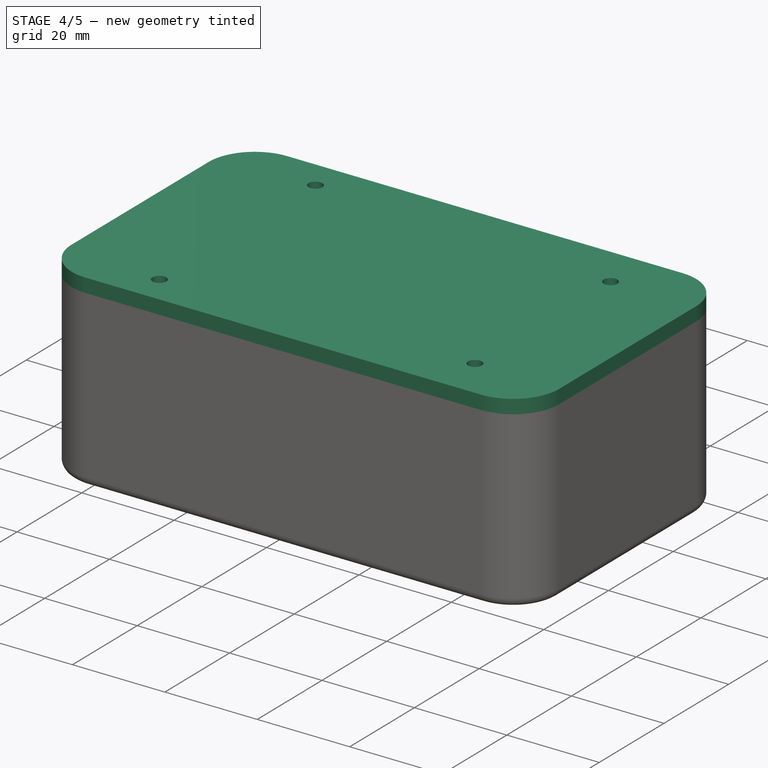
[diagram: stage 4 of 5 — iso view after this stage's code; geometry added in this stage tinted green]
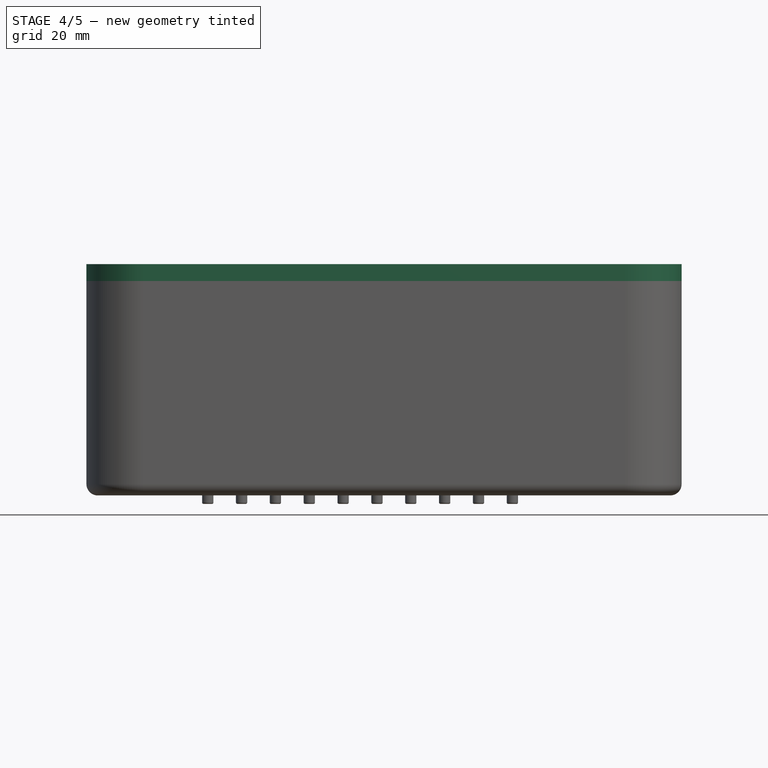
[diagram: stage 4 of 5 — front view after this stage's code; geometry added in this stage tinted green]
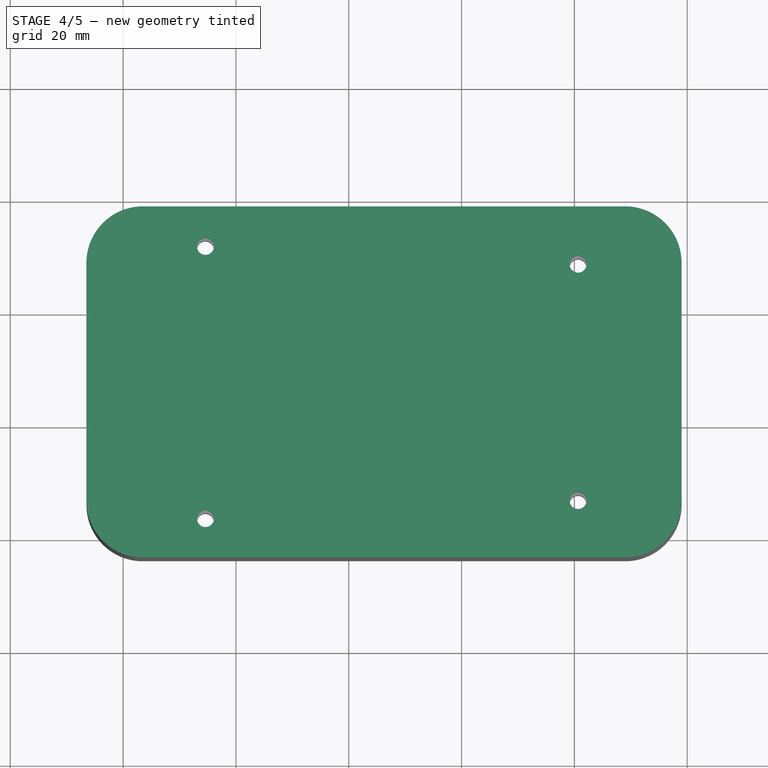
[diagram: stage 4 of 5 — top view after this stage's code; geometry added in this stage tinted green]
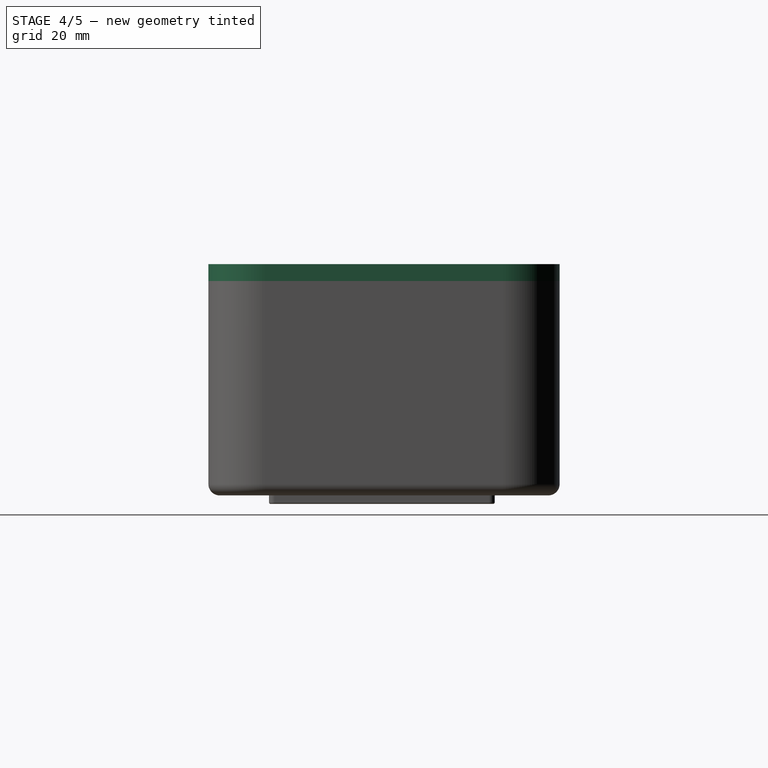
[diagram: stage 4 of 5 — right view after this stage's code; geometry added in this stage tinted green]
FEATURE [Sketcher::SketchObject] Sketch009
  ExternalGeometry = -> [Pad005]
  Placement = pos=(0,0,29) rot=(0,0,1;0rad)
  Support = -> Pad005 [Face5]
  sketch-geometry (8):
    g0: LineSegment StartX=3.5 StartY=58.5 StartZ=0 EndX=89 EndY=58.5 EndZ=0
    g1: LineSegment StartX=99 StartY=48.5 StartZ=0 EndX=99 EndY=6.25 EndZ=0
    g2: LineSegment StartX=89 StartY=-3.75 StartZ=0 EndX=3.5 EndY=-3.75 EndZ=0
    g3: LineSegment StartX=-6.5 StartY=6.25 StartZ=0 EndX=-6.5 EndY=48.5 EndZ=0
    g4: ArcOfCircle CenterX=3.5 CenterY=48.5 CenterZ=0 NormalX=0 NormalY=0 NormalZ=1 Radius=10 StartAngle=1.5708 EndAngle=3.14159
    g5: ArcOfCircle CenterX=3.5 CenterY=6.25 CenterZ=0 NormalX=0 NormalY=0 NormalZ=1 Radius=10 StartAngle=3.14159 EndAngle=4.71239
    g6: ArcOfCircle CenterX=89 CenterY=6.25 CenterZ=0 NormalX=0 NormalY=0 NormalZ=1 Radius=10 StartAngle=4.71239 EndAngle=6.28319
    g7: ArcOfCircle CenterX=89 CenterY=48.5 CenterZ=0 NormalX=0 NormalY=0 NormalZ=1 Radius=10 StartAngle=0 EndAngle=1.5708
  constraints (18):
    c: Horizontal(g0)
    c: Horizontal(g2)
    c: Vertical(g1)
    c: Vertical(g3)
    c: Tangent(g0,g4)
    c: Tangent(g3,g4)
    c: Tangent(g2,g5)
    c: Tangent(g3,g5)
    c: Tangent(g1,g6)
    c: Tangent(g2,g6)
    c: Tangent(g0,g7)
    c: Tangent(g1,g7)
    c: Equal(g4,g5)
    c: Equal(g5,g6)
    c: Equal(g6,g7)
    c: Equal(g7,g-3)
    c: Coincident(g3,g-3)
    c: Coincident(g1,g-5)
FEATURE [PartDesign::Pad] Pad006
  Length = 3
  Length2 = 100
  Placement = pos=(0,0,9) rot=(0,0,1;0rad)
  Sketch = -> Sketch009
  Type = 0
FEATURE [PartDesign::Pocket] Pocket007
  Length = 5
  Placement = pos=(0,0,9) rot=(0,0,1;0rad)
  Sketch = -> Sketch010
  Type = 2
FEATURE [Sketcher::SketchObject] Sketch013
  Placement = pos=(-6.5,0,9) rot=(0.57735,-0.57735,-0.57735;2.0944rad)
  Support = -> Pocket007 [Face11]
  sketch-geometry (1):
    g0: Circle CenterX=-9 CenterY=4.25 CenterZ=0 NormalX=0 NormalY=0 NormalZ=1 Radius=2.5
  constraints (3):
    c: Radius(g0) = 2.5
    c: DistanceY(g-1,g0) = 4.25
    c: DistanceX(g-1,g0) = -9
FEATURE [PartDesign::Pocket] Pocket008
  Length = 5
  Placement = pos=(0,0,9) rot=(0,0,1;0rad)
  Sketch = -> Sketch013
  Type = 2
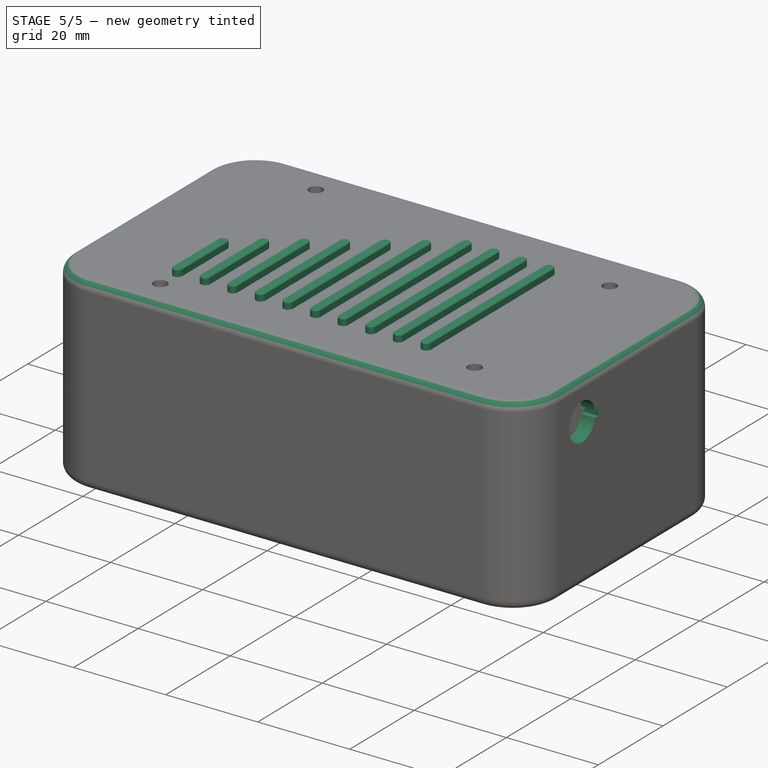
[diagram: stage 5 of 5 — iso view after this stage's code; geometry added in this stage tinted green]
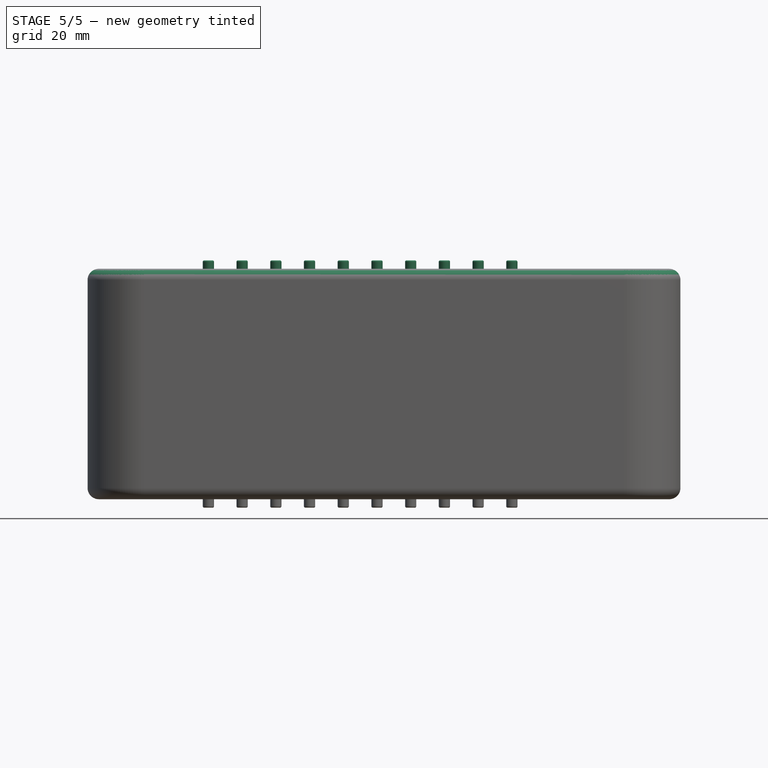
[diagram: stage 5 of 5 — front view after this stage's code; geometry added in this stage tinted green]
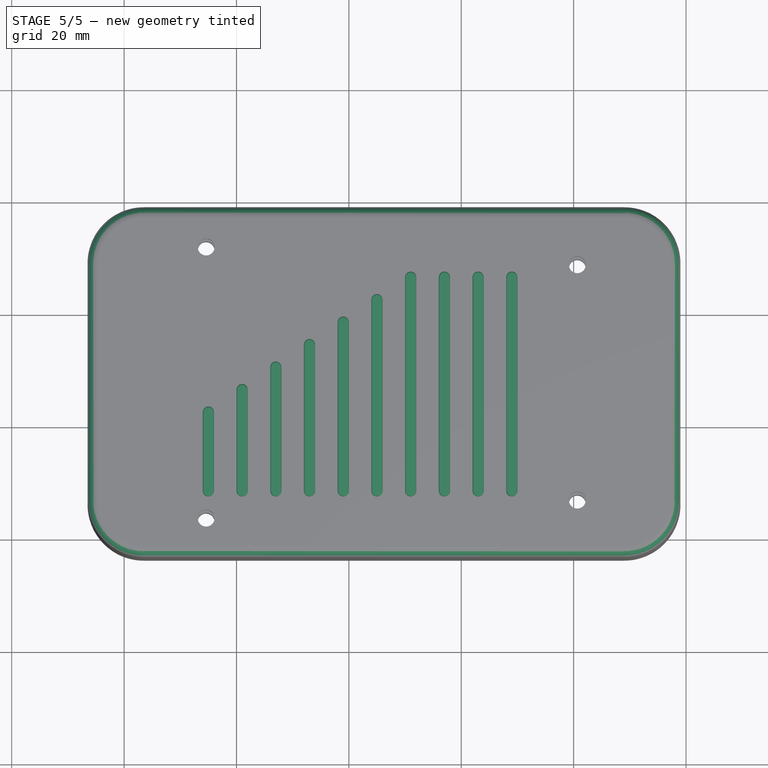
[diagram: stage 5 of 5 — top view after this stage's code; geometry added in this stage tinted green]
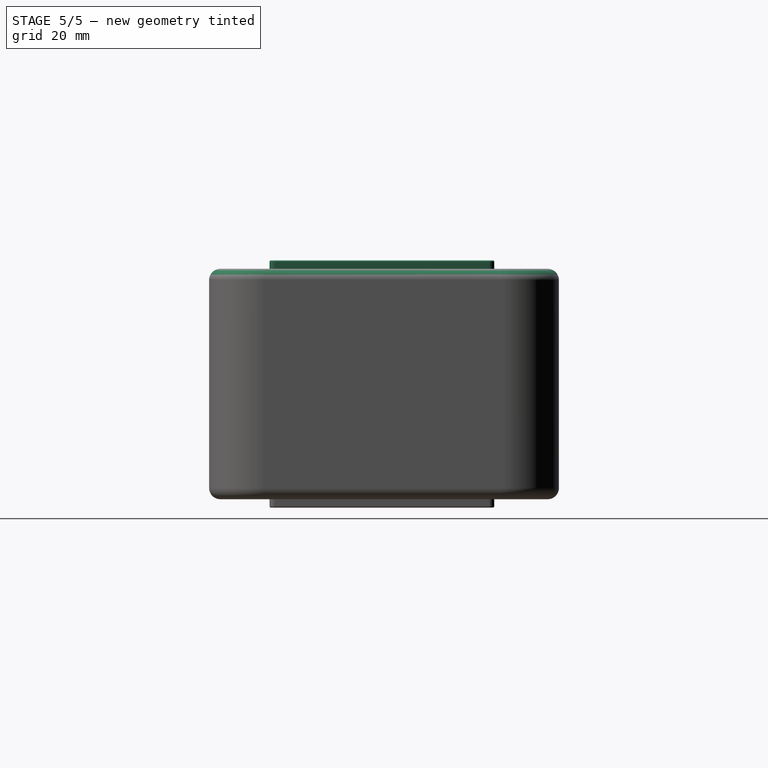
[diagram: stage 5 of 5 — right view after this stage's code; geometry added in this stage tinted green]
FEATURE [Sketcher::SketchObject] Sketch012
  Placement = pos=(99,0,9) rot=(0.57735,0.57735,0.57735;2.0944rad)
  Support = -> Pocket008 [Face16]
  sketch-geometry (7):
    g0: Circle [constr] CenterX=13.5 CenterY=14.5 CenterZ=0 NormalX=0 NormalY=0 NormalZ=1 Radius=4.05
    g1: ArcOfCircle CenterX=13.5 CenterY=14.5 CenterZ=0 NormalX=0 NormalY=0 NormalZ=1 Radius=4.05 StartAngle=0.198839 EndAngle=6.08435
    g2: LineSegment [constr] StartX=13.5 StartY=14.5 StartZ=0 EndX=18.6 EndY=14.5 EndZ=0
    g3: LineSegment StartX=18.6 StartY=14.5 StartZ=0 EndX=18.6 EndY=13.7 EndZ=0
    g4: LineSegment StartX=18.6 StartY=15.3 StartZ=0 EndX=18.6 EndY=14.5 EndZ=0
    g5: LineSegment StartX=17.4702 StartY=15.3 StartZ=0 EndX=18.6 EndY=15.3 EndZ=0
    g6: LineSegment StartX=17.4702 StartY=13.7 StartZ=0 EndX=18.6 EndY=13.7 EndZ=0
  constraints (22):
    c: Radius(g0) = 4.05
    c: DistanceX(g-1,g0) = 13.5
    c: DistanceY(g-1,g0) = 14.5
    c: Equal(g1,g0)
    c: Coincident(g1,g0)
    c: Parallel(g2,g-1)
    c: Coincident(g0,g2)
    c: Distance(g2) = 5.1
    c: Parallel(g3,g-2)
    c: Distance(g3) = 0.8
    c: Coincident(g2,g3)
    c: Parallel(g4,g-2)
    c: Equal(g4,g3)
    c: Coincident(g4,g2)
    c: Parallel(g5,g-1)
    c: Coincident(g5,g4)
    c: PointOnObject(g5,g0)
    c: Parallel(g6,g-1)
    c: Coincident(g6,g3)
    c: PointOnObject(g6,g0)
    c: Coincident(g1,g5)
    c: Coincident(g6,g1)
FEATURE [PartDesign::Pocket] Pocket009
  Length = 5
  Placement = pos=(0,0,9) rot=(0,0,1;0rad)
  Sketch = -> Sketch012
  Type = 2
FEATURE [Sketcher::SketchObject] Sketch015
  Placement = pos=(0,0,32) rot=(0,0,1;0rad)
  Support = -> Pocket009 [Face41]
  sketch-geometry (61):
    g0: LineSegment [constr] StartX=14 StartY=22 StartZ=0 EndX=16 EndY=22 EndZ=0
    g1: LineSegment StartX=16 StartY=22 StartZ=0 EndX=16 EndY=8 EndZ=0
    g2: LineSegment [constr] StartX=16 StartY=8 StartZ=0 EndX=14 EndY=8 EndZ=0
    g3: LineSegment StartX=14 StartY=8 StartZ=0 EndX=14 EndY=22 EndZ=0
    g4: ArcOfCircle CenterX=15 CenterY=22 CenterZ=0 NormalX=0 NormalY=0 NormalZ=1 Radius=1 StartAngle=4.982e-09 EndAngle=3.14159
    g5: ArcOfCircle CenterX=15 CenterY=8 CenterZ=0 NormalX=0 NormalY=0 NormalZ=1 Radius=1 StartAngle=3.14159 EndAngle=6.28319
    g6: LineSegment [constr] StartX=0 StartY=7 StartZ=0 EndX=15 EndY=7 EndZ=0
    g7: LineSegment [constr] StartX=20 StartY=26 StartZ=0 EndX=22 EndY=26 EndZ=0
    g8: LineSegment StartX=22 StartY=26 StartZ=0 EndX=22 EndY=8 EndZ=0
    g9: LineSegment [constr] StartX=22 StartY=8 StartZ=0 EndX=20 EndY=8 EndZ=0
    g10: LineSegment StartX=20 StartY=8 StartZ=0 EndX=20 EndY=26 EndZ=0
    g11: ArcOfCircle CenterX=21 CenterY=26 CenterZ=0 NormalX=0 NormalY=0 NormalZ=1 Radius=1 StartAngle=7.432e-09 EndAngle=3.14159
    g12: ArcOfCircle CenterX=21 CenterY=8 CenterZ=0 NormalX=0 NormalY=0 NormalZ=1 Radius=1 StartAngle=3.14159 EndAngle=6.28319
    g13: LineSegment [constr] StartX=26 StartY=30 StartZ=0 EndX=28 EndY=30 EndZ=0
    g14: LineSegment StartX=28 StartY=30 StartZ=0 EndX=28 EndY=8 EndZ=0
    g15: LineSegment [constr] StartX=28 StartY=8 StartZ=0 EndX=26 EndY=8 EndZ=0
    g16: LineSegment StartX=26 StartY=8 StartZ=0 EndX=26 EndY=30 EndZ=0
    g17: ArcOfCircle CenterX=27 CenterY=30 CenterZ=0 NormalX=0 NormalY=0 NormalZ=1 Radius=1 StartAngle=6.28319 EndAngle=9.42478
    g18: ArcOfCircle CenterX=27 CenterY=8 CenterZ=0 NormalX=0 NormalY=0 NormalZ=1 Radius=1 StartAngle=3.14159 EndAngle=6.28319
    g19: LineSegment [constr] StartX=32 StartY=34 StartZ=0 EndX=34 EndY=34 EndZ=0
    g20: LineSegment StartX=34 StartY=34 StartZ=0 EndX=34 EndY=8 EndZ=0
    g21: LineSegment [constr] StartX=34 StartY=8 StartZ=0 EndX=32 EndY=8 EndZ=0
    g22: LineSegment StartX=32 StartY=8 StartZ=0 EndX=32 EndY=34 EndZ=0
    g23: ArcOfCircle CenterX=33 CenterY=34 CenterZ=0 NormalX=0 NormalY=0 NormalZ=1 Radius=1 StartAngle=3.066e-09 EndAngle=3.14159
    g24: ArcOfCircle CenterX=33 CenterY=8 CenterZ=0 NormalX=0 NormalY=0 NormalZ=1 Radius=1 StartAngle=3.14159 EndAngle=6.28319
    g25: LineSegment [constr] StartX=38 StartY=38 StartZ=0 EndX=40 EndY=38 EndZ=0
    g26: LineSegment StartX=40 StartY=38 StartZ=0 EndX=40 EndY=8 EndZ=0
    g27: LineSegment [constr] StartX=40 StartY=8 StartZ=0 EndX=38 EndY=8 EndZ=0
    g28: LineSegment StartX=38 StartY=8 StartZ=0 EndX=38 EndY=38 EndZ=0
    g29: ArcOfCircle CenterX=39 CenterY=8 CenterZ=0 NormalX=0 NormalY=0 NormalZ=1 Radius=1 StartAngle=3.14159 EndAngle=6.28319
    g30: ArcOfCircle CenterX=39 CenterY=38 CenterZ=0 NormalX=0 NormalY=0 NormalZ=1 Radius=1 StartAngle=9.534e-09 EndAngle=3.14159
    g31: LineSegment [constr] StartX=44 StartY=42 StartZ=0 EndX=46 EndY=42 EndZ=0
    g32: LineSegment StartX=46 StartY=42 StartZ=0 EndX=46 EndY=8 EndZ=0
    g33: LineSegment [constr] StartX=46 StartY=8 StartZ=0 EndX=44 EndY=8 EndZ=0
    g34: LineSegment StartX=44 StartY=8 StartZ=0 EndX=44 EndY=42 EndZ=0
    g35: LineSegment [constr] StartX=50 StartY=46 StartZ=0 EndX=52 EndY=46 EndZ=0
    g36: LineSegment StartX=52 StartY=46 StartZ=0 EndX=52 EndY=8 EndZ=0
    g37: LineSegment [constr] StartX=52 StartY=8 StartZ=0 EndX=50 EndY=8 EndZ=0
    g38: LineSegment StartX=50 StartY=8 StartZ=0 EndX=50 EndY=46 EndZ=0
    g39: ArcOfCircle CenterX=45 CenterY=42 CenterZ=0 NormalX=0 NormalY=0 NormalZ=1 Radius=1 StartAngle=6.28319 EndAngle=9.42478
    g40: ArcOfCircle CenterX=51 CenterY=46 CenterZ=0 NormalX=0 NormalY=0 NormalZ=1 Radius=1 StartAngle=2.04075e-07 EndAngle=3.14159
    g41: ArcOfCircle CenterX=45 CenterY=8 CenterZ=0 NormalX=0 NormalY=0 NormalZ=1 Radius=1 StartAngle=3.14159 EndAngle=6.28319
    g42: ArcOfCircle CenterX=51 CenterY=8 CenterZ=0 NormalX=0 NormalY=0 NormalZ=1 Radius=1 StartAngle=3.14159 EndAngle=6.28319
    g43: LineSegment [constr] StartX=56 StartY=46 StartZ=0 EndX=58 EndY=46 EndZ=0
    g44: LineSegment StartX=58 StartY=46 StartZ=0 EndX=58 EndY=8 EndZ=0
    g45: LineSegment [constr] StartX=58 StartY=8 StartZ=0 EndX=56 EndY=8 EndZ=0
    g46: LineSegment StartX=56 StartY=8 StartZ=0 EndX=56 EndY=46 EndZ=0
    g47: LineSegment [constr] StartX=62 StartY=46 StartZ=0 EndX=64 EndY=46 EndZ=0
    g48: LineSegment StartX=64 StartY=46 StartZ=0 EndX=64 EndY=8 EndZ=0
    g49: LineSegment [constr] StartX=64 StartY=8 StartZ=0 EndX=62 EndY=8 EndZ=0
    g50: LineSegment StartX=62 StartY=8 StartZ=0 EndX=62 EndY=46 EndZ=0
    g51: LineSegment [constr] StartX=68 StartY=46 StartZ=0 EndX=70 EndY=46 EndZ=0
    g52: LineSegment StartX=70 StartY=46 StartZ=0 EndX=70 EndY=8 EndZ=0
    g53: LineSegment [constr] StartX=70 StartY=8 StartZ=0 EndX=68 EndY=8 EndZ=0
    g54: LineSegment StartX=68 StartY=8 StartZ=0 EndX=68 EndY=46 EndZ=0
    g55: ArcOfCircle CenterX=57 CenterY=8 CenterZ=0 NormalX=0 NormalY=0 NormalZ=1 Radius=1 StartAngle=3.14159 EndAngle=6.28319
    g56: ArcOfCircle CenterX=63 CenterY=8 CenterZ=0 NormalX=0 NormalY=0 NormalZ=1 Radius=1 StartAngle=3.14159 EndAngle=6.28319
    g57: ArcOfCircle CenterX=69 CenterY=7.99999 CenterZ=0 NormalX=0 NormalY=0 NormalZ=1 Radius=1 StartAngle=3.14158 EndAngle=6.28319
    g58: ArcOfCircle CenterX=57 CenterY=46 CenterZ=0 NormalX=0 NormalY=0 NormalZ=1 Radius=1 StartAngle=6.28319 EndAngle=9.42478
    g59: ArcOfCircle CenterX=63 CenterY=46 CenterZ=0 NormalX=0 NormalY=0 NormalZ=1 Radius=1 StartAngle=2.63073e-07 EndAngle=3.14159
    g60: ArcOfCircle CenterX=69 CenterY=46 CenterZ=0 NormalX=0 NormalY=0 NormalZ=1 Radius=1 StartAngle=2.34706e-07 EndAngle=3.14159
  constraints (184):
    c: Coincident(g0,g1)
    c: Coincident(g1,g2)
    c: Coincident(g2,g3)
    c: Coincident(g3,g0)
    c: Horizontal(g0)
    c: Horizontal(g2)
    c: Vertical(g1)
    c: Vertical(g3)
    c: Radius(g4) = 1
    c: Coincident(g4,g0)
    c: Coincident(g4,g0)
    c: Coincident(g5,g1)
    c: Coincident(g5,g2)
    c: Distance(g3) = 14
    c: Parallel(g-1,g6)
    c: PointOnObject(g6,g-2)
    c: Distance(g-1,g6) = 7
    c: Distance(g6) = 15
    c: Tangent(g6,g5)
    c: Perpendicular(g2,g5)
    c: PointOnObject(g6,g5)
    c: Distance(g2) = 2
    c: Coincident(g7,g8)
    c: Coincident(g8,g9)
    c: Coincident(g9,g10)
    c: Coincident(g10,g7)
    c: Horizontal(g7)
    c: Horizontal(g9)
    c: Vertical(g8)
    c: Vertical(g10)
    c: Equal(g9,g2)
    c: Distance(g8) = 18
    c: DistanceY(g1,g9) = 0
    c: DistanceX(g1,g9) = 4
    c: Equal(g11,g4)
    c: Coincident(g11,g7)
    c: Coincident(g11,g7)
    c: Equal(g12,g11)
    c: Coincident(g12,g8)
    c: Coincident(g12,g9)
    c: Coincident(g13,g14)
    c: Coincident(g14,g15)
    c: Coincident(g15,g16)
    c: Coincident(g16,g13)
    c: Horizontal(g13)
    c: Horizontal(g15)
    c: Vertical(g14)
    c: Vertical(g16)
    c: Equal(g9,g15)
    c: Distance(g14) = 22
    c: DistanceY(g8,g15) = 0
    c: Distance(g8,g15) = 4
    c: Equal(g18,g17)
    c: Equal(g17,g4)
    c: Coincident(g17,g13)
    c: Coincident(g17,g13)
    c: Coincident(g18,g15)
    c: Coincident(g18,g14)
    c: Coincident(g19,g20)
    c: Coincident(g20,g21)
    c: Coincident(g21,g22)
    c: Coincident(g22,g19)
    c: Horizontal(g19)
    c: Horizontal(g21)
    c: Vertical(g20)
    c: Vertical(g22)
    c: Equal(g15,g21)
    c: DistanceY(g14,g21) = 0
    c: Distance(g14,g21) = 4
    c: Equal(g24,g23)
    c: Equal(g23,g4)
    c: Coincident(g23,g19)
    c: Coincident(g23,g19)
    c: Coincident(g24,g20)
    c: Coincident(g24,g21)
    c: Distance(g20) = 26
    c: Coincident(g25,g26)
    c: Coincident(g26,g27)
    c: Coincident(g27,g28)
    c: Coincident(g28,g25)
    c: Horizontal(g25)
    c: Horizontal(g27)
    c: Vertical(g26)
    c: Vertical(g28)
    c: Equal(g21,g27)
    c: DistanceY(g27,g20) = 0
    c: Distance(g20,g27) = 4
    c: Distance(g26) = 30
    c: Equal(g29,g30)
    c: Equal(g30,g4)
    c: Coincident(g30,g25)
    c: Coincident(g30,g25)
    c: Coincident(g29,g27)
    c: Coincident(g29,g26)
    c: Coincident(g31,g32)
    c: Coincident(g32,g33)
    c: Coincident(g33,g34)
    c: Coincident(g34,g31)
    c: Horizontal(g31)
    c: Horizontal(g33)
    c: Vertical(g32)
    c: Vertical(g34)
    c: Coincident(g35,g36)
    c: Coincident(g36,g37)
    c: Coincident(g37,g38)
    c: Coincident(g38,g35)
    c: Horizontal(g35)
    c: Horizontal(g37)
    c: Vertical(g36)
    c: Vertical(g38)
    c: Equal(g33,g37)
    c: Equal(g37,g27)
    c: DistanceY(g26,g33) = 0
    c: DistanceY(g32,g37) = 0
    c: Distance(g33,g26) = 4
    c: Distance(g32,g37) = 4
    c: Distance(g32) = 34
    c: Distance(g36) = 38
    c: Equal(g41,g42)
    c: Equal(g42,g39)
    c: Equal(g39,g40)
    c: Equal(g40,g4)
    c: Coincident(g39,g31)
    c: Coincident(g39,g31)
    c: Coincident(g40,g35)
    c: Coincident(g40,g35)
    c: Coincident(g41,g32)
    c: Coincident(g33,g41)
    c: Coincident(g42,g36)
    c: Coincident(g42,g37)
    c: Coincident(g43,g44)
    c: Coincident(g44,g45)
    c: Coincident(g45,g46)
    c: Coincident(g46,g43)
    c: Horizontal(g43)
    c: Horizontal(g45)
    c: Vertical(g44)
    c: Vertical(g46)
    c: Coincident(g47,g48)
    c: Coincident(g48,g49)
    c: Coincident(g49,g50)
    c: Coincident(g50,g47)
    c: Horizontal(g47)
    c: Horizontal(g49)
    c: Vertical(g48)
    c: Vertical(g50)
    c: Coincident(g51,g52)
    c: Coincident(g52,g53)
    c: Coincident(g53,g54)
    c: Coincident(g54,g51)
    c: Horizontal(g51)
    c: Horizontal(g53)
    c: Vertical(g52)
    c: Vertical(g54)
    c: Equal(g53,g49)
    c: Equal(g49,g45)
    c: Equal(g45,g37)
    c: DistanceY(g36,g45) = 0
    c: Distance(g36,g45) = 4
    c: DistanceY(g44,g49) = 0
    c: Distance(g49,g44) = 4
    c: DistanceY(g53,g48) = 0
    c: DistanceX(g53,g48) = -4
    c: Equal(g44,g48)
    c: Equal(g48,g52)
    c: Equal(g52,g36)
    c: Equal(g58,g59)
    c: Equal(g59,g60)
    c: Equal(g60,g56)
    c: Equal(g56,g57)
    c: Equal(g57,g55)
    c: Equal(g55,g4)
    c: Coincident(g55,g45)
    c: Coincident(g55,g44)
    c: Coincident(g56,g49)
    c: Coincident(g56,g48)
    c: Coincident(g57,g53)
    c: Coincident(g57,g52)
    c: Coincident(g58,g43)
    c: Coincident(g58,g43)
    c: Coincident(g59,g47)
    c: Coincident(g59,g47)
    c: Coincident(g60,g51)
    c: Coincident(g60,g51)
FEATURE [PartDesign::Pad] Pad009
  Length = 1.5
  Length2 = 100
  Placement = pos=(0,0,9) rot=(0,0,1;0rad)
  Sketch = -> Sketch015
  Type = 0
FEATURE [PartDesign::Fillet] Fillet
  Base = -> Pad009 [Edge72]
  Placement = pos=(0,0,9) rot=(0,0,1;0rad)
  Radius = 2
FEATURE [PartDesign::Fillet] Fillet002
  Base = -> Fillet [Edge116,Edge119,Edge120,Edge122,Edge108,Edge111,Edge112,Edge114,Edge124,Edge127,Edge128,Edge130,Edge132,Edge135,Edge136,Edge138,Edge198,Edge192,Edge195,Edge196,Edge140,Edge143,Edge144,Edge146,Edge148,Edge151,Edge152,Edge154,Edge190,Edge184,Edge187,Edge188,Edge182,Edge176,Edge179,Edge180,Edge174,Edge168,Edge171,Edge172]
  Placement = pos=(0,0,9) rot=(0,0,1;0rad)
  Radius = 0.25
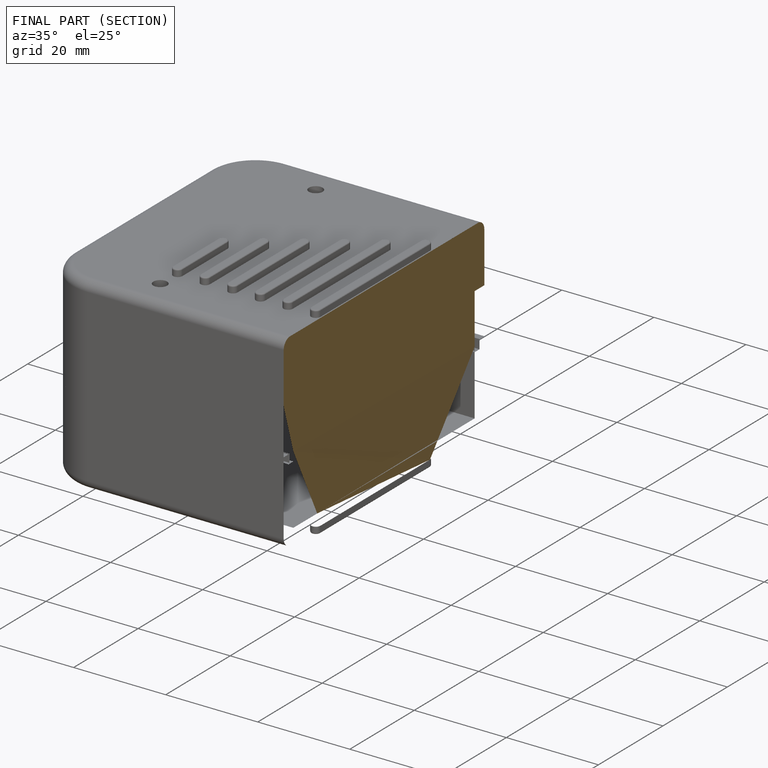
[diagram: finished part — half-section view (interior)]
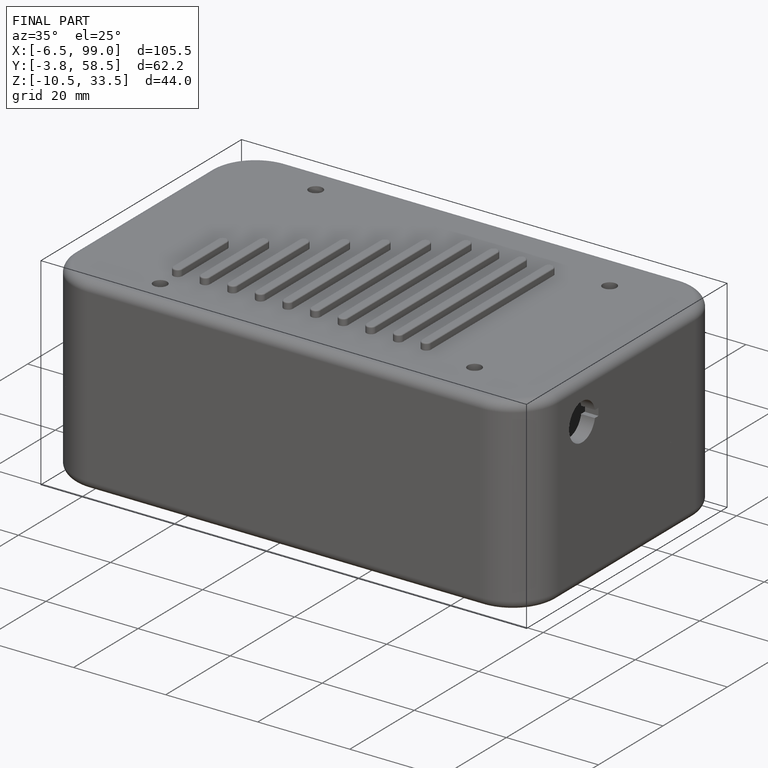
[diagram: finished part — iso view with bounding-box wireframe]
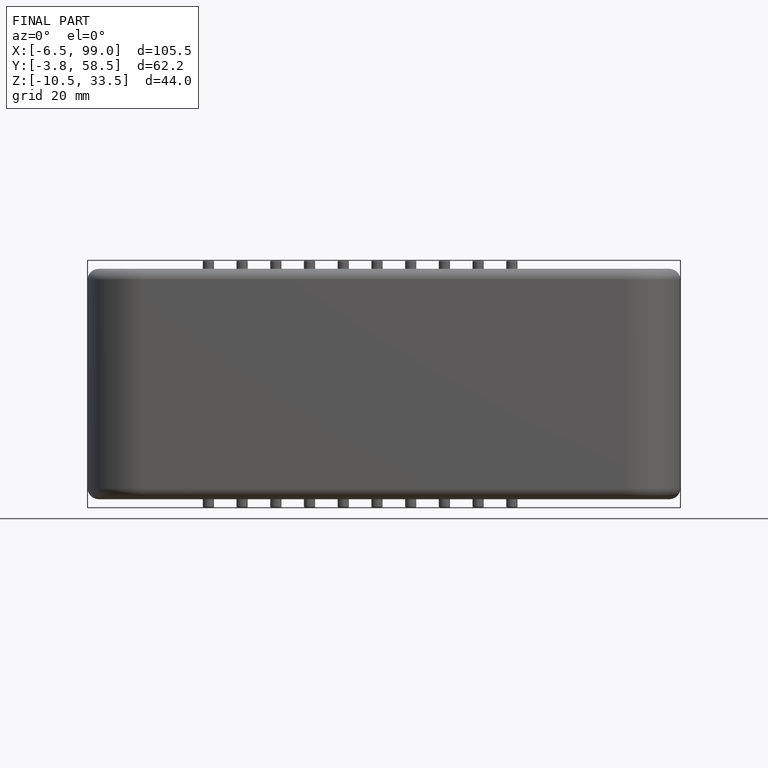
[diagram: finished part — front view with bounding-box wireframe]
